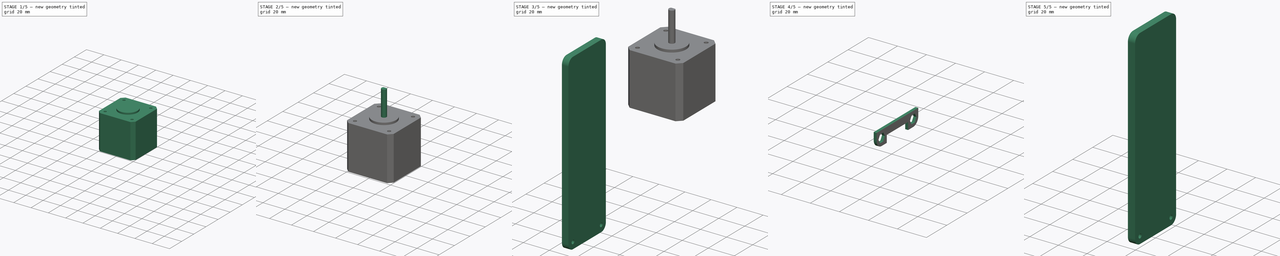
[diagram: build sequence overview — one tinted view per stage of 5, left to right]
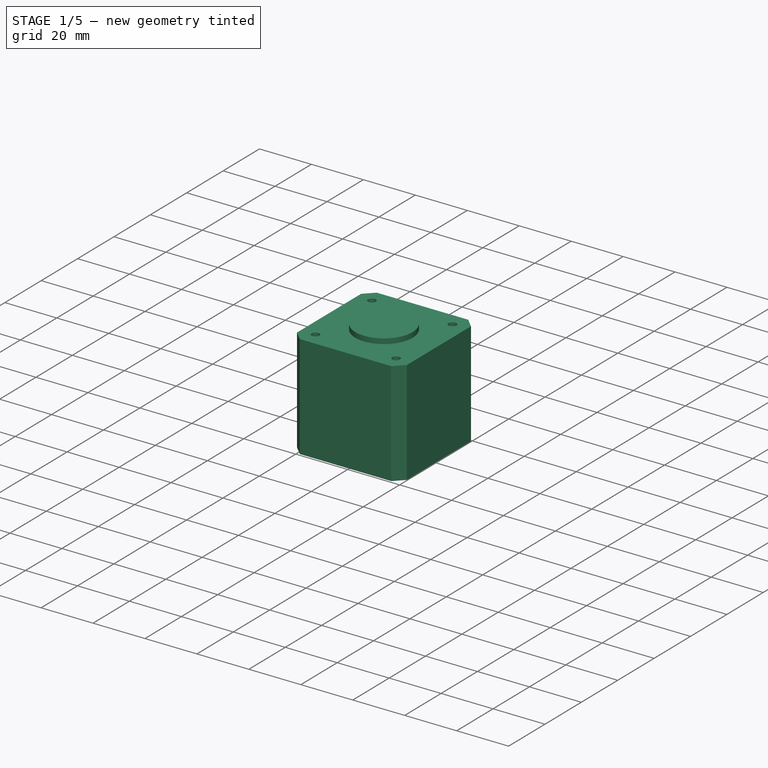
[diagram: stage 1 of 5 — iso view after this stage's code; geometry added in this stage tinted green]
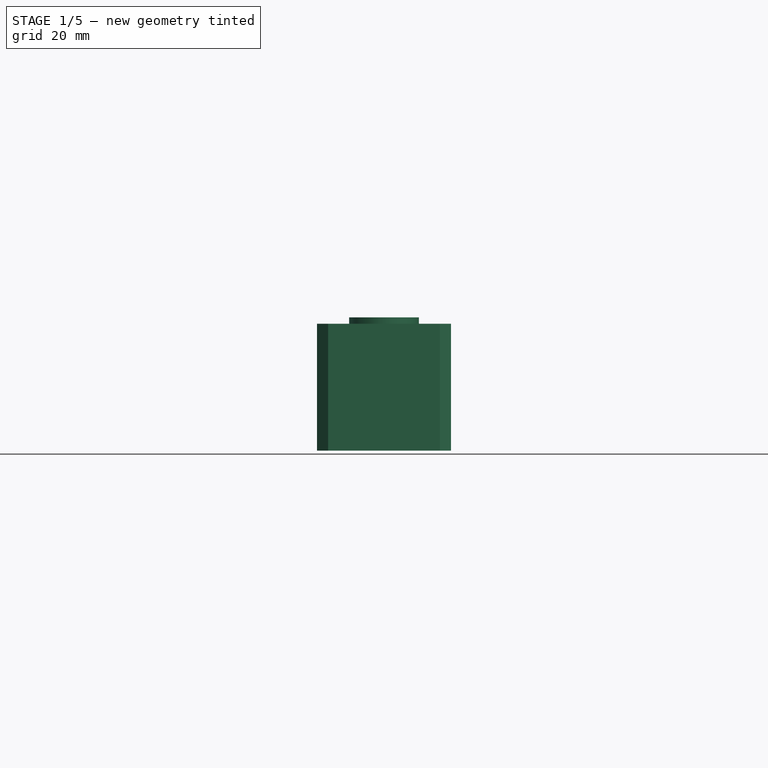
[diagram: stage 1 of 5 — front view after this stage's code; geometry added in this stage tinted green]
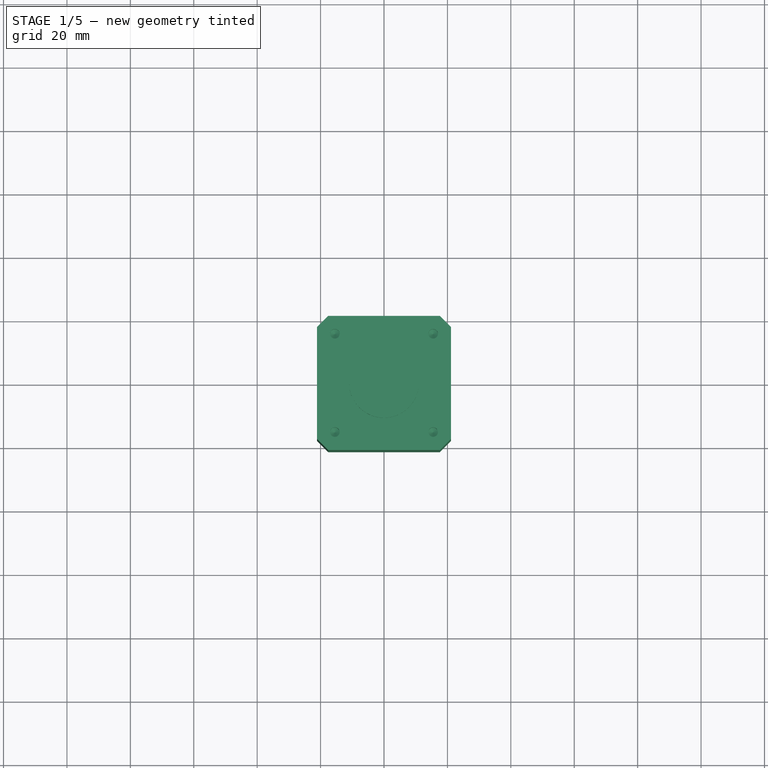
[diagram: stage 1 of 5 — top view after this stage's code; geometry added in this stage tinted green]
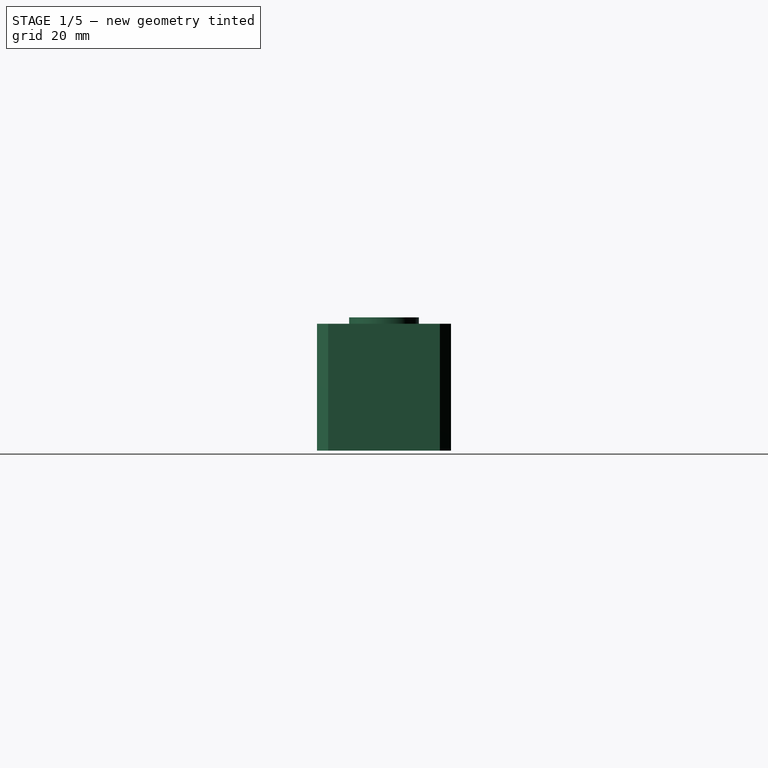
[diagram: stage 1 of 5 — right view after this stage's code; geometry added in this stage tinted green]
FCSTD DOCUMENT  (FreeCAD 0.21R33668 +26 (Git))
Label: elevation-rotation-table
License: All rights reserved
LicenseURL: http://en.wikipedia.org/wiki/All_rights_reserved
objects: Sketcher::SketchObject×19, PartDesign::Pad×9, PartDesign::ShapeBinder×7, PartDesign::Body×5, PartDesign::Pocket×3, PartDesign::Hole×2, PartDesign::AdditiveLoft×2, Part::FeaturePython×1, Part::Fuse×1
note: 65 computed .brp shape members not serialized (recipe doc carries the construction recipe); baked Part::Feature solids carry a one-line shape summary decoded from their .brp

FEATURE [Sketcher::SketchObject] Sketch005
  FullyConstrained = true
  MapMode = 5
  Support = -> [XY_Plane001]
  sketch-geometry (18):
    g0: LineSegment StartX=-17.6145 StartY=21.15 StartZ=0 EndX=17.6145 EndY=21.15 EndZ=0
    g1: LineSegment StartX=17.6145 StartY=21.15 StartZ=0 EndX=21.15 EndY=17.6145 EndZ=0
    g2: LineSegment StartX=21.15 StartY=17.6145 StartZ=0 EndX=21.15 EndY=-17.6145 EndZ=0
    g3: LineSegment StartX=21.15 StartY=-17.6145 StartZ=0 EndX=17.6145 EndY=-21.15 EndZ=0
    g4: LineSegment StartX=17.6145 StartY=-21.15 StartZ=0 EndX=-17.6145 EndY=-21.15 EndZ=0
    g5: LineSegment StartX=-17.6145 StartY=-21.15 StartZ=0 EndX=-21.15 EndY=-17.6145 EndZ=0
    g6: LineSegment StartX=-21.15 StartY=-17.6145 StartZ=0 EndX=-21.15 EndY=17.6145 EndZ=0
    g7: LineSegment StartX=-21.15 StartY=17.6145 StartZ=0 EndX=-17.6145 EndY=21.15 EndZ=0
    g8: LineSegment StartX=-21.15 StartY=17.6145 StartZ=0 EndX=21.15 EndY=17.6145 EndZ=0
    g9: LineSegment StartX=-17.6145 StartY=-21.15 StartZ=0 EndX=-17.6145 EndY=21.15 EndZ=0
    g10: LineSegment StartX=17.6145 StartY=21.15 StartZ=0 EndX=17.6145 EndY=-21.15 EndZ=0
    g11: LineSegment StartX=21.15 StartY=-17.6145 StartZ=0 EndX=-21.15 EndY=-17.6145 EndZ=0
    g12: GeomPoint X=-17.6145 Y=17.6145 Z=0
    g13: GeomPoint X=17.6145 Y=17.6145 Z=0
    g14: GeomPoint X=17.6145 Y=-17.6145 Z=0
    g15: GeomPoint X=-17.6145 Y=-17.6145 Z=0
    g16: LineSegment StartX=-17.6145 StartY=17.6145 StartZ=0 EndX=17.6145 EndY=-17.6145 EndZ=0
    g17: LineSegment StartX=17.6145 StartY=17.6145 StartZ=0 EndX=-17.6145 EndY=-17.6145 EndZ=0
  constraints (44):
    c: Horizontal(g0)
    c: Coincident(g1,g0)
    c: Coincident(g2,g1)
    c: Vertical(g2)
    c: Coincident(g3,g2)
    c: Coincident(g4,g3)
    c: Horizontal(g4)
    c: Coincident(g5,g4)
    c: Coincident(g6,g5)
    c: Vertical(g6)
    c: Coincident(g7,g6)
    c: Coincident(g7,g0)
    c: Coincident(g8,g6)
    c: Coincident(g8,g1)
    c: Horizontal(g8)
    c: Coincident(g9,g4)
    c: Coincident(g9,g0)
    c: Vertical(g9)
    c: Distance(g8) = 42.3
    c: Distance(g9) = 42.3
    c: Equal(g3,g5)
    c: Equal(g1,g3)
    c: Equal(g7,g1)
    c: Coincident(g10,g0)
    c: Coincident(g10,g3)
    c: Vertical(g10)
    c: Coincident(g11,g2)
    c: Coincident(g11,g5)
    c: PointOnObject(g12,g8)
    c: PointOnObject(g13,g8)
    c: PointOnObject(g14,g11)
    c: PointOnObject(g15,g9)
    c: PointOnObject(g12,g9)
    c: PointOnObject(g14,g10)
    c: PointOnObject(g15,g11)
    c: Coincident(g16,g12)
    c: Coincident(g16,g14)
    c: Coincident(g17,g13)
    c: Coincident(g17,g15)
    c: PointOnObject(g-1,g16)
    c: PointOnObject(g13,g10)
    c: PointOnObject(g-1,g17)
    c: Equal(g2,g4)
    c: Distance(g1) = 5
FEATURE [PartDesign::Pad] Pad002
  Direction = (0,0,1)
  Length = 40
  Length2 = 10
  Profile = -> Sketch005
  ReferenceAxis = -> Sketch005 [N_Axis]
  Type = 0
FEATURE [Sketcher::SketchObject] Sketch006
  FullyConstrained = true
  MapMode = 5
  Placement = pos=(0,0,40) rot=(0,0,1;0rad)
  Support = -> [Pad002]
  sketch-geometry (10):
    g0: Circle CenterX=15.5 CenterY=15.5 CenterZ=0 NormalX=0 NormalY=0 NormalZ=1 AngleXU=0 Radius=1.5
    g1: Circle CenterX=-15.5 CenterY=15.5 CenterZ=0 NormalX=0 NormalY=0 NormalZ=1 AngleXU=0 Radius=1.5
    g2: Circle CenterX=-15.5 CenterY=-15.5 CenterZ=0 NormalX=0 NormalY=0 NormalZ=1 AngleXU=0 Radius=1.5
    g3: Circle CenterX=15.5 CenterY=-15.5 CenterZ=0 NormalX=0 NormalY=0 NormalZ=1 AngleXU=0 Radius=1.5
    g4: LineSegment StartX=-15.5 StartY=15.5 StartZ=0 EndX=15.5 EndY=15.5 EndZ=0
    g5: LineSegment StartX=15.5 StartY=15.5 StartZ=0 EndX=15.5 EndY=-15.5 EndZ=0
    g6: LineSegment StartX=15.5 StartY=-15.5 StartZ=0 EndX=-15.5 EndY=-15.5 EndZ=0
    g7: LineSegment StartX=-15.5 StartY=-15.5 StartZ=0 EndX=-15.5 EndY=15.5 EndZ=0
    g8: LineSegment StartX=-15.5 StartY=15.5 StartZ=0 EndX=15.5 EndY=-15.5 EndZ=0
    g9: LineSegment StartX=15.5 StartY=15.5 StartZ=0 EndX=-15.5 EndY=-15.5 EndZ=0
  constraints (24):
    c: Diameter(g0) = 3
    c: Equal(g1,g0)
    c: Equal(g1,g2)
    c: Equal(g0,g3)
    c: Coincident(g4,g5)
    c: Coincident(g5,g6)
    c: Coincident(g6,g7)
    c: Coincident(g7,g4)
    c: Horizontal(g4)
    c: Horizontal(g6)
    c: Vertical(g5)
    c: Vertical(g7)
    c: Coincident(g4,g1)
    c: Coincident(g5,g3)
    c: Coincident(g4,g0)
    c: Coincident(g6,g2)
    c: Distance(g4) = 31
    c: Coincident(g8,g1)
    c: Coincident(g8,g3)
    c: Coincident(g9,g0)
    c: Coincident(g9,g2)
    c: PointOnObject(g-1,g8)
    c: PointOnObject(g-1,g9)
    c: Equal(g4,g5)
FEATURE [PartDesign::Hole] Hole
  BaseFeature = -> Pad002
  CustomThreadClearance = 0
  Depth = 4.5
  DepthType = 0
  Diameter = 3
  DrillForDepth = false
  DrillPoint = 1
  DrillPointAngle = 118
  HoleCutCountersinkAngle = 90
  HoleCutCustomValues = false
  HoleCutDepth = 0
  HoleCutDiameter = 6.1
  HoleCutType = 0
  ModelThread = false
  Profile = -> Sketch006
  Tapered = false
  TaperedAngle = 90
  ThreadClass = 0
  ThreadDepth = 4.5
  ThreadDepthType = 0
  ThreadDirection = 0
  ThreadFit = 0
  ThreadSize = 0
  ThreadType = 0
  Threaded = false
  UseCustomThreadClearance = false
FEATURE [Sketcher::SketchObject] Sketch002
  ExternalGeometry = -> [Hole]
  FullyConstrained = true
  MapMode = 5
  Support = -> [XY_Plane001]
  sketch-geometry (4):
    g0: Circle CenterX=-15.5 CenterY=15.5 CenterZ=0 NormalX=0 NormalY=0 NormalZ=1 AngleXU=0 Radius=1.5
    g1: Circle CenterX=-15.5 CenterY=-15.5 CenterZ=0 NormalX=0 NormalY=0 NormalZ=1 AngleXU=0 Radius=1.5
    g2: Circle CenterX=15.5 CenterY=-15.5 CenterZ=0 NormalX=0 NormalY=0 NormalZ=1 AngleXU=0 Radius=1.5
    g3: Circle CenterX=15.5 CenterY=15.5 CenterZ=0 NormalX=0 NormalY=0 NormalZ=1 AngleXU=0 Radius=1.5
  constraints (8):
    c: Coincident(g0,g-3)
    c: Coincident(g1,g-6)
    c: Coincident(g2,g-5)
    c: Coincident(g3,g-4)
    c: Equal(g-3,g1)
    c: Equal(g2,g-3)
    c: Equal(g-4,g0)
    c: Equal(g0,g3)
FEATURE [PartDesign::Hole] Hole001
  BaseFeature = -> Hole
  CustomThreadClearance = 0
  Depth = 4.5
  DepthType = 0
  Diameter = 3
  DrillForDepth = false
  DrillPoint = 1
  DrillPointAngle = 118
  HoleCutCountersinkAngle = 90
  HoleCutCustomValues = false
  HoleCutDepth = 0
  HoleCutDiameter = 6.1
  HoleCutType = 0
  ModelThread = false
  Profile = -> Sketch002
  Reversed = true
  Tapered = false
  TaperedAngle = 90
  ThreadClass = 0
  ThreadDepth = 4.5
  ThreadDepthType = 0
  ThreadDirection = 0
  ThreadFit = 0
  ThreadSize = 0
  ThreadType = 0
  Threaded = false
  UseCustomThreadClearance = false
FEATURE [Sketcher::SketchObject] Sketch007
  FullyConstrained = true
  MapMode = 5
  Placement = pos=(0,0,40) rot=(0,0,1;0rad)
  Support = -> [Hole001]
  sketch-geometry (1):
    g0: Circle CenterX=0 CenterY=0 CenterZ=0 NormalX=0 NormalY=0 NormalZ=1 AngleXU=0 Radius=11
  constraints (2):
    c: Coincident(g0,g-1)
    c: Diameter(g0) = 22
FEATURE [PartDesign::Pad] Pad003
  BaseFeature = -> Hole001
  Direction = (0,0,1)
  Length = 2
  Length2 = 10
  Profile = -> Sketch007
  ReferenceAxis = -> Sketch007 [N_Axis]
  Type = 0
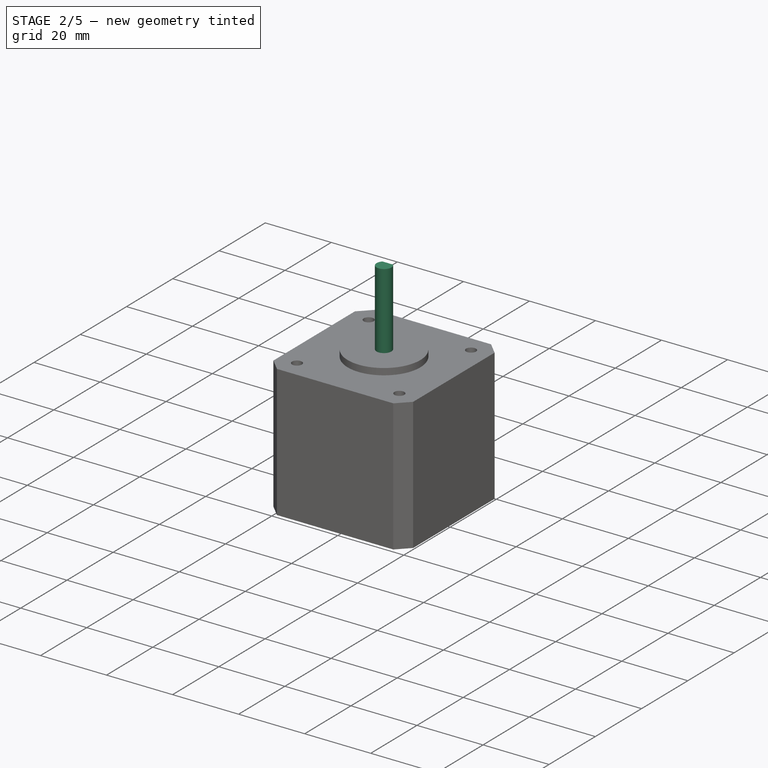
[diagram: stage 2 of 5 — iso view after this stage's code; geometry added in this stage tinted green]
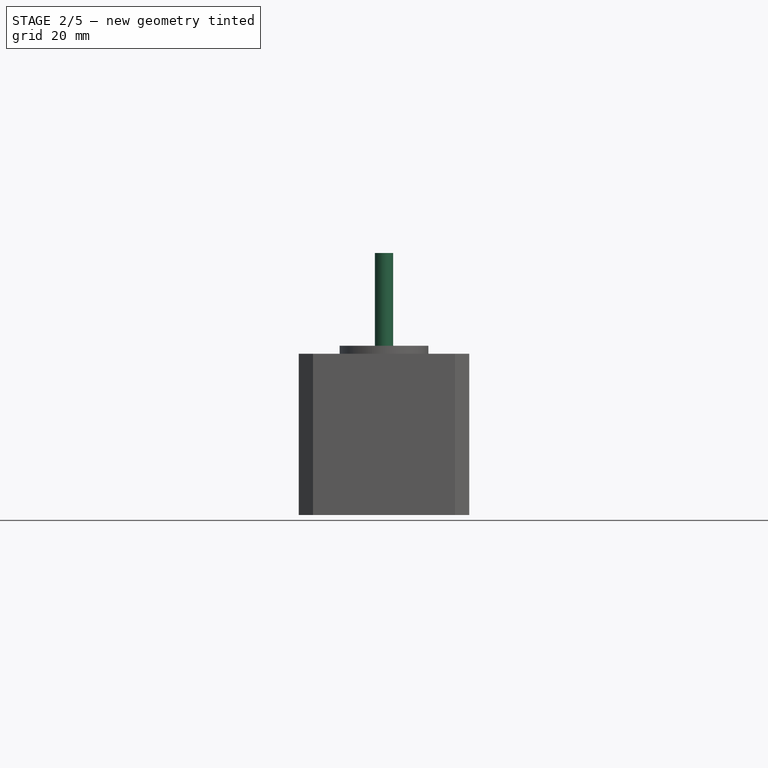
[diagram: stage 2 of 5 — front view after this stage's code; geometry added in this stage tinted green]
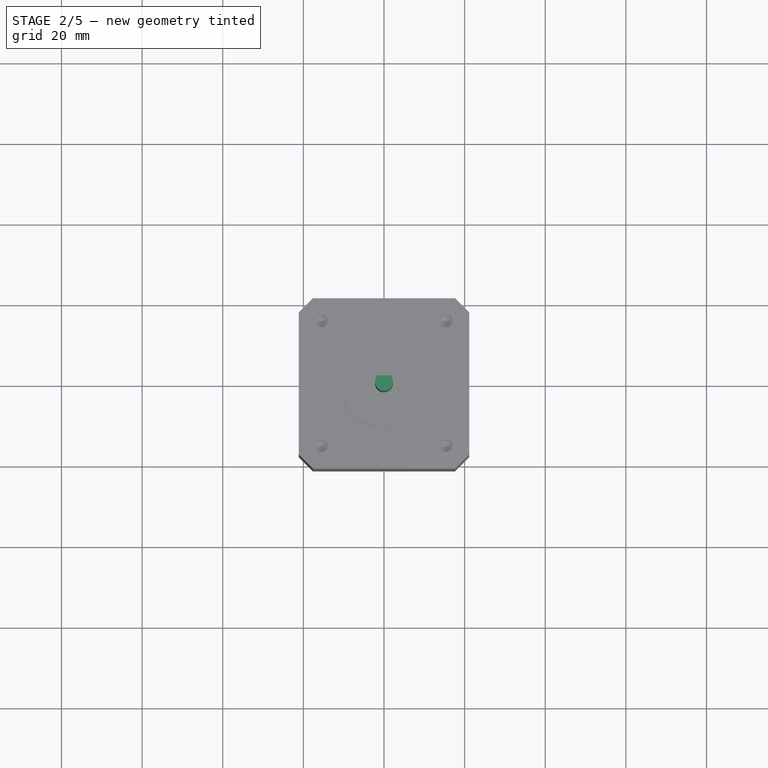
[diagram: stage 2 of 5 — top view after this stage's code; geometry added in this stage tinted green]
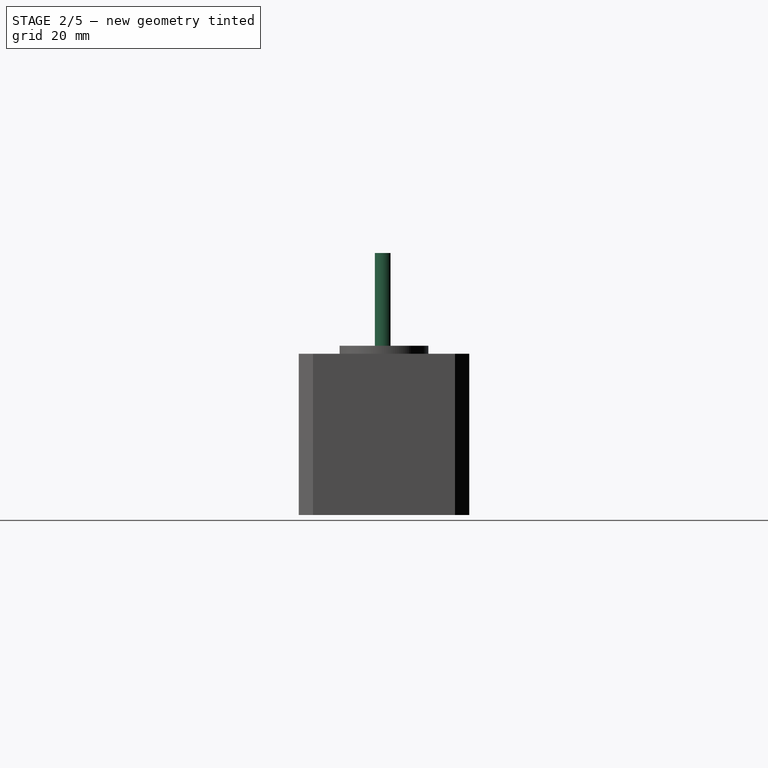
[diagram: stage 2 of 5 — right view after this stage's code; geometry added in this stage tinted green]
FEATURE [Sketcher::SketchObject] Sketch008
  FullyConstrained = true
  MapMode = 5
  Placement = pos=(0,0,42) rot=(0,0,1;0rad)
  Support = -> [Pad003]
  sketch-geometry (3):
    g0: ArcOfCircle CenterX=0 CenterY=0 CenterZ=0 NormalX=0 NormalY=0 NormalZ=1 AngleXU=0 Radius=2.25 StartAngle=2.35052 EndAngle=7.07426
    g1: LineSegment StartX=-1.58193 StartY=1.6 StartZ=0 EndX=1.58193 EndY=1.6 EndZ=0
    g2: LineSegment StartX=1.58193 StartY=1.6 StartZ=0 EndX=1.58193 EndY=0 EndZ=0
  constraints (9):
    c: Coincident(g0,g-1)
    c: Coincident(g1,g0)
    c: Coincident(g1,g0)
    c: Parallel(g1,g-1)
    c: Diameter(g0) = 4.5
    c: Coincident(g2,g0)
    c: PointOnObject(g2,g-1)
    c: Vertical(g2)
    c: Distance(g2) = 1.6
FEATURE [PartDesign::Pad] Pad004
  BaseFeature = -> Pad003
  Direction = (0,0,1)
  Length = 23
  Length2 = 10
  Profile = -> Sketch008
  ReferenceAxis = -> Sketch008 [N_Axis]
  Type = 0
FEATURE [PartDesign::Body] Body001  label="Motor NEMA17"
  Group = -> [Sketch005,Pad002,Sketch006,Hole,Sketch002,Hole001,Sketch007,Pad003,Sketch008,Pad004]
  Origin = -> Origin001
  Placement = pos=(0,0,0) rot=(0,-1,0;1.5708rad)
  Tip = -> Pad004
FEATURE [Sketcher::SketchObject] Sketch
  FullyConstrained = true
  MapMode = 5
  Support = -> [XY_Plane]
  sketch-geometry (10):
    g0: Circle CenterX=-15.5 CenterY=15.5 CenterZ=0 NormalX=0 NormalY=0 NormalZ=1 AngleXU=0 Radius=1.5
    g1: Circle CenterX=15.5 CenterY=15.5 CenterZ=0 NormalX=0 NormalY=0 NormalZ=1 AngleXU=0 Radius=1.5
    g2: Circle CenterX=15.5 CenterY=-15.5 CenterZ=0 NormalX=0 NormalY=0 NormalZ=1 AngleXU=0 Radius=1.5
    g3: Circle CenterX=-15.5 CenterY=-15.5 CenterZ=0 NormalX=0 NormalY=0 NormalZ=1 AngleXU=0 Radius=1.5
    g4: LineSegment StartX=-15.5 StartY=15.5 StartZ=0 EndX=15.5 EndY=15.5 EndZ=0
    g5: LineSegment StartX=15.5 StartY=15.5 StartZ=0 EndX=15.5 EndY=-15.5 EndZ=0
    g6: LineSegment StartX=15.5 StartY=-15.5 StartZ=0 EndX=-15.5 EndY=-15.5 EndZ=0
    g7: LineSegment StartX=-15.5 StartY=-15.5 StartZ=0 EndX=-15.5 EndY=15.5 EndZ=0
    g8: LineSegment StartX=-15.5 StartY=15.5 StartZ=0 EndX=15.5 EndY=-15.5 EndZ=0
    g9: LineSegment StartX=15.5 StartY=15.5 StartZ=0 EndX=-15.5 EndY=-15.5 EndZ=0
  constraints (24):
    c: Diameter(g1) = 3
    c: Diameter(g2) = 3
    c: Diameter(g3) = 3
    c: Diameter(g0) = 3
    c: Coincident(g4,g5)
    c: Coincident(g5,g6)
    c: Coincident(g6,g7)
    c: Coincident(g7,g4)
    c: Horizontal(g4)
    c: Horizontal(g6)
    c: Vertical(g5)
    c: Vertical(g7)
    c: Coincident(g4,g0)
    c: Coincident(g5,g2)
    c: Coincident(g1,g4)
    c: Coincident(g3,g6)
    c: Equal(g4,g5)
    c: Coincident(g8,g0)
    c: Coincident(g8,g2)
    c: Coincident(g9,g1)
    c: Coincident(g9,g3)
    c: PointOnObject(g-1,g8)
    c: PointOnObject(g-1,g9)
    c: Distance(g5) = 31
FEATURE [Sketcher::SketchObject] Sketch001
  ExternalGeometry = -> [Sketch]
  FullyConstrained = true
  MapMode = 5
  Support = -> [XY_Plane]
  sketch-geometry (18):
    g0: ArcOfCircle CenterX=-15.5 CenterY=15.5 CenterZ=0 NormalX=0 NormalY=0 NormalZ=1 AngleXU=0 Radius=5 StartAngle=1.5708 EndAngle=3.14159
    g1: ArcOfCircle CenterX=15.5 CenterY=15.5 CenterZ=0 NormalX=0 NormalY=0 NormalZ=1 AngleXU=0 Radius=5 StartAngle=-8e-15 EndAngle=1.5708
    g2: LineSegment StartX=-15.5 StartY=20.5 StartZ=0 EndX=15.5 EndY=20.5 EndZ=0
    g3: ArcOfCircle CenterX=-10.9428 CenterY=10.9428 CenterZ=0 NormalX=0 NormalY=0 NormalZ=1 AngleXU=0 Radius=2.5 StartAngle=1.5708 EndAngle=3.14159
    g4: ArcOfCircle CenterX=10.9428 CenterY=10.9428 CenterZ=0 NormalX=0 NormalY=0 NormalZ=1 AngleXU=0 Radius=2.5 StartAngle=0 EndAngle=1.5708
    g5: ArcOfCircle CenterX=10.9428 CenterY=-10.9428 CenterZ=0 NormalX=0 NormalY=0 NormalZ=1 AngleXU=0 Radius=2.5 StartAngle=4.71239 EndAngle=6.28319
    g6: ArcOfCircle CenterX=-10.9428 CenterY=-10.9428 CenterZ=0 NormalX=0 NormalY=0 NormalZ=1 AngleXU=0 Radius=2.5 StartAngle=3.14159 EndAngle=4.71239
    g7: LineSegment StartX=-10.9428 StartY=13.4428 StartZ=0 EndX=10.9428 EndY=13.4428 EndZ=0
    g8: LineSegment StartX=13.4428 StartY=10.9428 StartZ=0 EndX=13.4428 EndY=-10.9428 EndZ=0
    g9: LineSegment StartX=10.9428 StartY=-13.4428 StartZ=0 EndX=-10.9428 EndY=-13.4428 EndZ=0
    g10: LineSegment StartX=-13.4428 StartY=-10.9428 StartZ=0 EndX=-13.4428 EndY=10.9428 EndZ=0
    g11: GeomPoint X=10.9428 Y=13.4428 Z=0
    g12: ArcOfCircle CenterX=-15.5 CenterY=-15.5 CenterZ=0 NormalX=0 NormalY=0 NormalZ=1 AngleXU=0 Radius=5 StartAngle=3.14159 EndAngle=4.71239
    g13: ArcOfCircle CenterX=15.5 CenterY=-15.5 CenterZ=0 NormalX=0 NormalY=0 NormalZ=1 AngleXU=0 Radius=5 StartAngle=4.71239 EndAngle=6.28319
    g14: LineSegment StartX=-20.5 StartY=15.5 StartZ=0 EndX=-20.5 EndY=-15.5 EndZ=0
    g15: LineSegment StartX=20.5 StartY=-15.5 StartZ=0 EndX=20.5 EndY=15.5 EndZ=0
    g16: LineSegment StartX=0 StartY=0 StartZ=0 EndX=15.5 EndY=15.5 EndZ=0
    g17: LineSegment StartX=-15.5 StartY=-20.5 StartZ=0 EndX=15.5 EndY=-20.5 EndZ=0
  constraints (39):
    c: Coincident(g0,g-3)
    c: Coincident(g1,g-4)
    c: Horizontal(g2)
    c: Radius(g1) = 5
    c: Coincident(g7,g4)
    c: Horizontal(g7)
    c: Vertical(g8)
    c: Horizontal(g9)
    c: Vertical(g10)
    c: Radius(g4) = 2.5
    c: PointOnObject(g11,g4)
    c: Distance(g1,g11) = 5
    c: Vertical(g14)
    c: Symmetric(g3,g6,g-1)
    c: Symmetric(g5,g4,g-1)
    c: Symmetric(g13,g1,g-1)
    c: Symmetric(g6,g5,g-2)
    c: Coincident(g12,g-6)
    c: Tangent(g15,g13) = -1.5708
    c: Tangent(g14,g12) = -1.5708
    c: Tangent(g15,g1) = -1.5708
    c: Tangent(g2,g1) = 1.5708
    c: Tangent(g2,g0) = 1.5708
    c: Tangent(g14,g0) = -1.5708
    c: Tangent(g8,g5) = 1.5708
    c: Tangent(g9,g5) = 1.5708
    c: Tangent(g9,g6) = 1.5708
    c: Tangent(g10,g6) = 1.5708
    c: Tangent(g10,g3) = 1.5708
    c: Tangent(g7,g3) = 1.5708
    c: Tangent(g7,g4,g11) = 1.5708
    c: Tangent(g8,g4) = 1.5708
    c: Symmetric(g4,g3,g-2)
    c: Coincident(g16,g-1)
    c: Coincident(g16,g1)
    c: PointOnObject(g4,g16)
    c: Horizontal(g17)
    c: Tangent(g17,g13) = -1.5708
    c: Tangent(g17,g12) = -1.5708
FEATURE [PartDesign::Pad] Pad
  Direction = (0,0,1)
  Length = 3
  Length2 = 10
  Profile = -> Sketch001
  ReferenceAxis = -> Sketch001 [N_Axis]
  Type = 0
FEATURE [PartDesign::Pocket] Pocket  label="Motor-Attachment"
  BaseFeature = -> Pad
  Direction = (0,0,-1)
  Length = 3
  Length2 = 5
  Profile = -> Sketch
  ReferenceAxis = -> Sketch [N_Axis]
  Reversed = true
  Type = 0
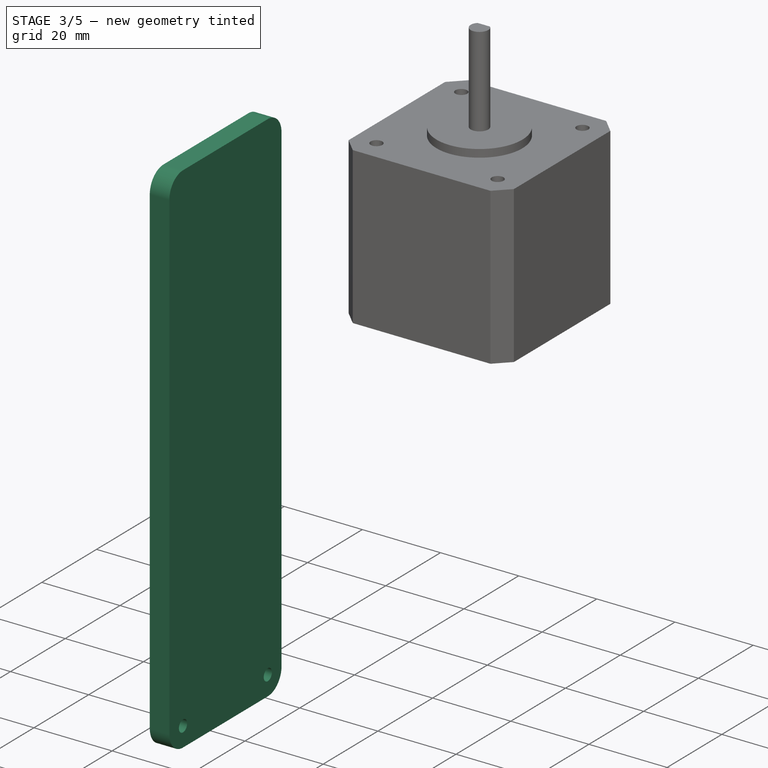
[diagram: stage 3 of 5 — iso view after this stage's code; geometry added in this stage tinted green]
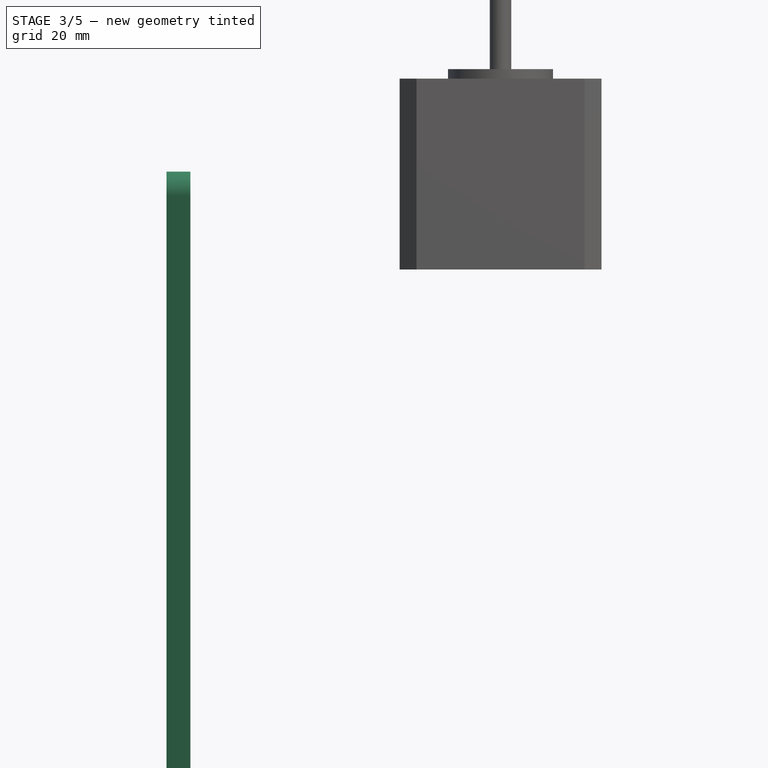
[diagram: stage 3 of 5 — front view after this stage's code; geometry added in this stage tinted green]
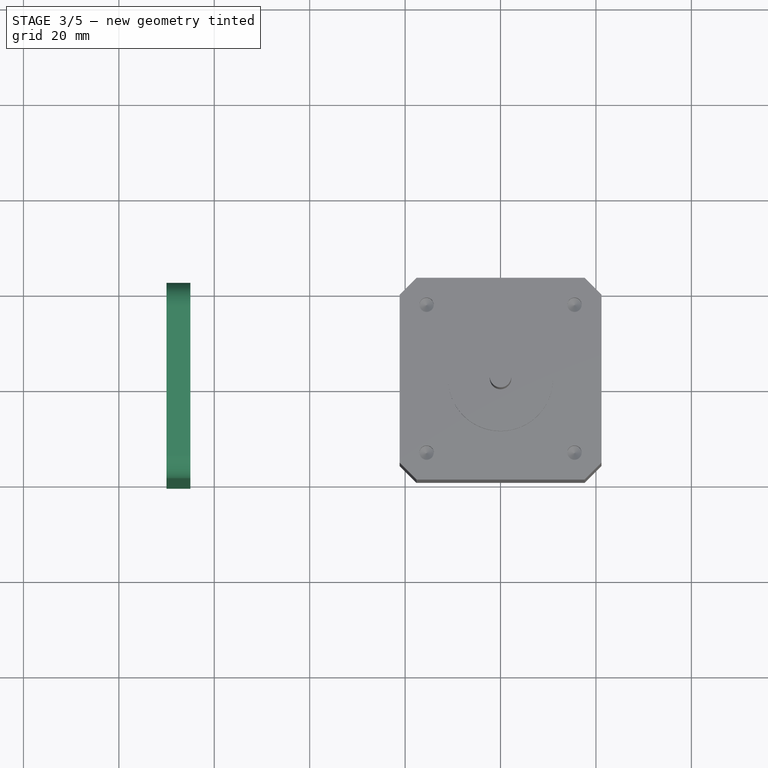
[diagram: stage 3 of 5 — top view after this stage's code; geometry added in this stage tinted green]
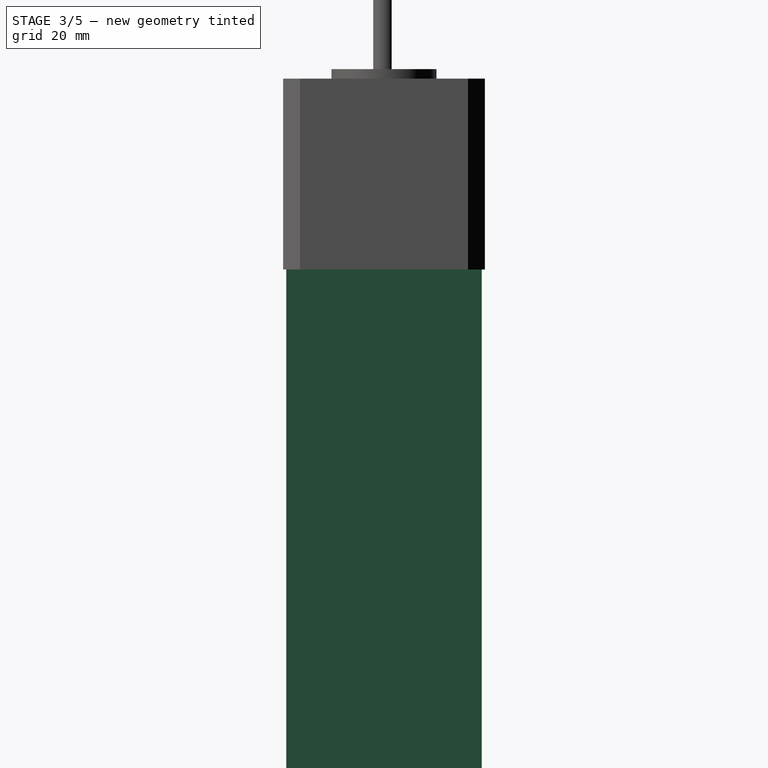
[diagram: stage 3 of 5 — right view after this stage's code; geometry added in this stage tinted green]
FEATURE [PartDesign::ShapeBinder] ShapeBinder
  Support = -> [Pocket]
  TraceSupport = false
FEATURE [Sketcher::SketchObject] Sketch014
  ExternalGeometry = -> [ShapeBinder]
  FullyConstrained = true
  MapMode = 5
  Placement = pos=(0,0,3) rot=(0,0,1;0rad)
  Support = -> [ShapeBinder]
  sketch-geometry (4):
    g0: LineSegment StartX=-10.9428 StartY=13.4428 StartZ=0 EndX=10.9428 EndY=13.4428 EndZ=0
    g1: LineSegment StartX=10.9428 StartY=13.4428 StartZ=0 EndX=10.9428 EndY=20.5 EndZ=0
    g2: LineSegment StartX=10.9428 StartY=20.5 StartZ=0 EndX=-10.9428 EndY=20.5 EndZ=0
    g3: LineSegment StartX=-10.9428 StartY=20.5 StartZ=0 EndX=-10.9428 EndY=13.4428 EndZ=0
  constraints (10):
    c: Coincident(g0,g1)
    c: Coincident(g1,g2)
    c: Coincident(g2,g3)
    c: Coincident(g3,g0)
    c: Horizontal(g2)
    c: Vertical(g1)
    c: Vertical(g3)
    c: Coincident(g0,g-3)
    c: PointOnObject(g1,g-4)
    c: Coincident(g0,g-3)
FEATURE [Sketcher::SketchObject] Sketch015
  AttachmentOffset = pos=(0,0,22) rot=(0,0,1;0rad)
  ExternalGeometry = -> [ShapeBinder]
  FullyConstrained = true
  MapMode = 5
  Placement = pos=(0,0,25) rot=(0,0,1;0rad)
  Support = -> [ShapeBinder]
  sketch-geometry (4):
    g0: ArcOfCircle CenterX=0 CenterY=0 CenterZ=0 NormalX=0 NormalY=0 NormalZ=1 AngleXU=0 Radius=20.5 StartAngle=1.00771 EndAngle=2.13388
    g1: LineSegment StartX=-10.9428 StartY=17.3351 StartZ=0 EndX=-10.9428 EndY=13.4428 EndZ=0
    g2: LineSegment StartX=-10.9428 StartY=13.4428 StartZ=0 EndX=10.9428 EndY=13.4428 EndZ=0
    g3: LineSegment StartX=10.9428 StartY=13.4428 StartZ=0 EndX=10.9428 EndY=17.3351 EndZ=0
  constraints (10):
    c: Coincident(g1,g0)
    c: Vertical(g1)
    c: Coincident(g2,g1)
    c: Coincident(g3,g2)
    c: Vertical(g3)
    c: Coincident(g2,g-5)
    c: Coincident(g1,g-4)
    c: Coincident(g0,g3)
    c: Tangent(g0,g-3)
    c: Coincident(g0,g-1)
FEATURE [PartDesign::AdditiveLoft] AdditiveLoft
  Closed = false
  Profile = -> Sketch014
  Ruled = false
  Sections = -> [Sketch015]
FEATURE [Sketcher::SketchObject] Sketch016
  ExternalGeometry = -> [AdditiveLoft]
  FullyConstrained = true
  MapMode = 5
  Placement = pos=(0,0,25) rot=(0,0,1;0rad)
  Support = -> [AdditiveLoft]
  sketch-geometry (3):
    g0: Circle CenterX=0 CenterY=16.9714 CenterZ=0 NormalX=0 NormalY=0 NormalZ=1 AngleXU=0 Radius=2
    g1: LineSegment StartX=0 StartY=20.5 StartZ=0 EndX=0 EndY=16.9714 EndZ=0
    g2: LineSegment StartX=0 StartY=16.9714 StartZ=0 EndX=0 EndY=13.4428 EndZ=0
  constraints (9):
    c: PointOnObject(g0,g-2)
    c: PointOnObject(g1,g-3)
    c: Coincident(g1,g0)
    c: Vertical(g1)
    c: Coincident(g2,g0)
    c: PointOnObject(g2,g-4)
    c: Vertical(g2)
    c: Equal(g2,g1)
    c: Diameter(g0) = 4
FEATURE [PartDesign::Body] Body003
  Group = -> [ShapeBinder,Sketch014,Sketch015,AdditiveLoft,Sketch016]
  Origin = -> Origin003
  Tip = -> AdditiveLoft
FEATURE [Part::FeaturePython] Array  label="Table-Attachment"  # Draft array (typed FeaturePython)
  AlwaysSyncPlacement = false
  Angle = 360
  ArrayType = 1
  Axis = (0,0,1)
  Base = -> Body003
  Center = (0,0,0)
  Count = 4
  ExpandArray = false
  Fuse = true
  IntervalAxis = (0,0,0)
  IntervalX = (50,0,0)
  IntervalY = (0,50,0)
  IntervalZ = (0,0,50)
  NumberCircles = 3
  NumberPolar = 4
  NumberX = 2
  NumberY = 2
  NumberZ = 1
  PlacementList = 4 placements: [(0,0,0),(0,0,0),(0,0,0),(0,0,0)]
  RadialDistance = 50
  ScaleList = (4) [(1,1,1),(1,1,1),(1,1,1),(1,1,1)]
  Symmetry = 1
  TangentialDistance = 25
FEATURE [Part::Fuse] Fusion  label="Motor-Table-connector"
  Base = -> Array
  Placement = pos=(-40,0,0) rot=(0.57735,0.57735,-0.57735;4.18879rad)
  Tool = -> Pocket
FEATURE [PartDesign::ShapeBinder] ShapeBinder001
  Placement = pos=(-40,0,0) rot=(-0.57735,0.57735,0.57735;4.18879rad)
  Support = -> [Fusion]
  TraceSupport = true
FEATURE [PartDesign::ShapeBinder] ShapeBinder002
  Placement = pos=(-40,0,0) rot=(0.57735,0.57735,-0.57735;4.18879rad)
  Support = -> [Fusion]
  TraceSupport = true
FEATURE [Sketcher::SketchObject] Sketch017
  ExternalGeometry = -> [ShapeBinder002]
  FullyConstrained = true
  MapMode = 5
  Placement = pos=(-65,5.6e-15,5.6e-15) rot=(-0.57735,0.57735,0.57735;4.18879rad)
  Support = -> [ShapeBinder001]
  sketch-geometry (15):
    g0: ArcOfCircle CenterX=-15.5 CenterY=15.5 CenterZ=0 NormalX=0 NormalY=0 NormalZ=1 AngleXU=0 Radius=5 StartAngle=1.5708 EndAngle=3.14159
    g1: ArcOfCircle CenterX=15.5 CenterY=15.5 CenterZ=0 NormalX=0 NormalY=0 NormalZ=1 AngleXU=0 Radius=5 StartAngle=0 EndAngle=1.5708
    g2: LineSegment StartX=-15.5 StartY=20.5 StartZ=0 EndX=15.5 EndY=20.5 EndZ=0
    g3: LineSegment StartX=-20.5 StartY=15.5 StartZ=0 EndX=-20.5 EndY=-108 EndZ=0
    g4: LineSegment StartX=20.5 StartY=15.5 StartZ=0 EndX=20.5 EndY=-108 EndZ=0
    g5: LineSegment StartX=-15.5 StartY=-113 StartZ=0 EndX=15.5 EndY=-113 EndZ=0
    g6: ArcOfCircle CenterX=-15.5 CenterY=-108 CenterZ=0 NormalX=0 NormalY=0 NormalZ=1 AngleXU=0 Radius=5 StartAngle=3.14159 EndAngle=4.71239
    g7: ArcOfCircle CenterX=15.5 CenterY=-108 CenterZ=0 NormalX=0 NormalY=0 NormalZ=1 AngleXU=0 Radius=5 StartAngle=4.71239 EndAngle=6.28319
    g8: LineSegment StartX=-15.5 StartY=-108 StartZ=0 EndX=-15.5 EndY=-113 EndZ=0
    g9: LineSegment StartX=15.5 StartY=-108 StartZ=0 EndX=15.5 EndY=-113 EndZ=0
    g10: Circle CenterX=15.5 CenterY=-108 CenterZ=0 NormalX=0 NormalY=0 NormalZ=1 AngleXU=0 Radius=1.5
    g11: Circle CenterX=-15.5 CenterY=-108 CenterZ=0 NormalX=0 NormalY=0 NormalZ=1 AngleXU=0 Radius=1.5
    g12: LineSegment StartX=20.5 StartY=-100 StartZ=0 EndX=-20.5 EndY=-100 EndZ=0
    g13: LineSegment StartX=15.5 StartY=-108 StartZ=0 EndX=15.5 EndY=-103 EndZ=0
    g14: LineSegment StartX=15.5 StartY=-103 StartZ=0 EndX=15.5 EndY=-100 EndZ=0
  constraints (41):
    c: Coincident(g0,g-3)
    c: Coincident(g0,g-4)
    c: Angle(g0) = 1.5708
    c: Coincident(g1,g-5)
    c: Coincident(g1,g-6)
    c: Angle(g1) = 1.5708
    c: Coincident(g2,g0)
    c: Coincident(g2,g1)
    c: Coincident(g3,g0)
    c: Vertical(g3)
    c: Coincident(g4,g1)
    c: Vertical(g4)
    c: Symmetric(g5,g5,g-2)
    c: Equal(g5,g2)
    c: Coincident(g6,g3)
    c: Coincident(g6,g5)
    c: Coincident(g7,g4)
    c: Coincident(g7,g5)
    c: Angle(g7) = 1.5708
    c: Angle(g6) = 1.5708
    c: Coincident(g8,g6)
    c: Coincident(g8,g5)
    c: Coincident(g9,g7)
    c: Coincident(g9,g5)
    c: Vertical(g9)
    c: Vertical(g8)
    c: Coincident(g10,g7)
    c: Coincident(g11,g6)
    c: Equal(g-7,g10)
    c: Equal(g-7,g11)
    c: PointOnObject(g12,g4)
    c: PointOnObject(g12,g3)
    c: Horizontal(g12)
    c: Distance(g-1,g12) = 100
    c: Coincident(g13,g7)
    c: Coincident(g14,g13)
    c: PointOnObject(g14,g12)
    c: Vertical(g14)
    c: Vertical(g13)
    c: Equal(g13,g9)
    c: Distance(g14) = 3
FEATURE [PartDesign::Pad] Pad005
  Direction = (-1,2e-16,2e-16)
  Length = 5
  Length2 = 10
  Placement = pos=(-40,0,0) rot=(-0.57735,0.57735,0.57735;4.18879rad)
  Profile = -> Sketch017
  ReferenceAxis = -> Sketch017 [N_Axis]
  Type = 0
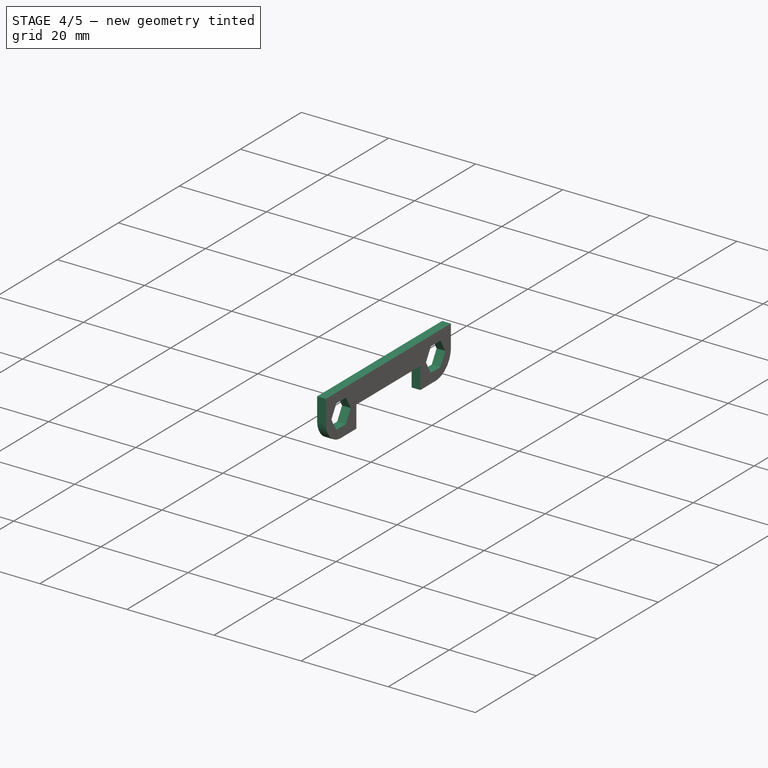
[diagram: stage 4 of 5 — iso view after this stage's code; geometry added in this stage tinted green]
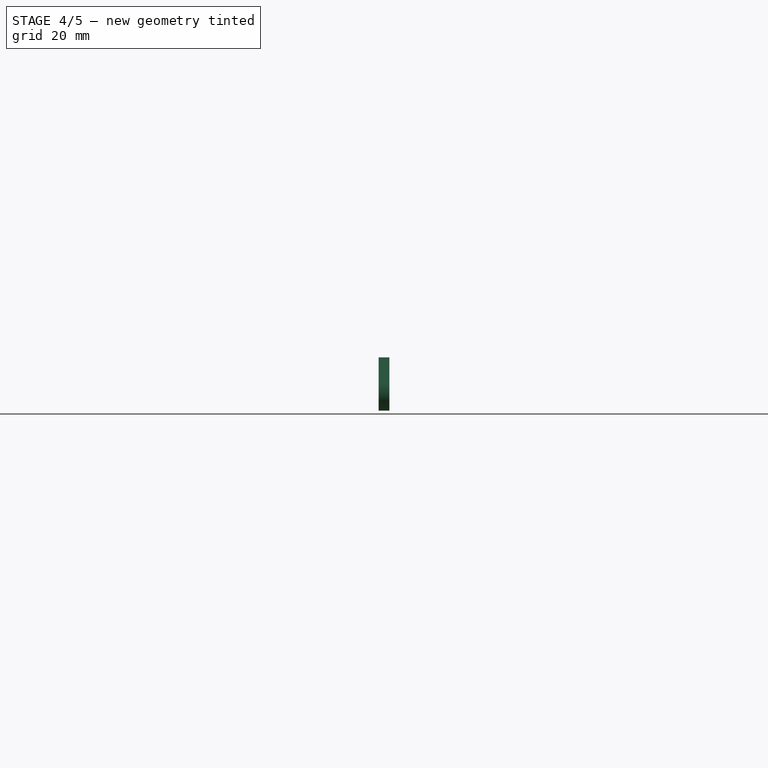
[diagram: stage 4 of 5 — front view after this stage's code; geometry added in this stage tinted green]
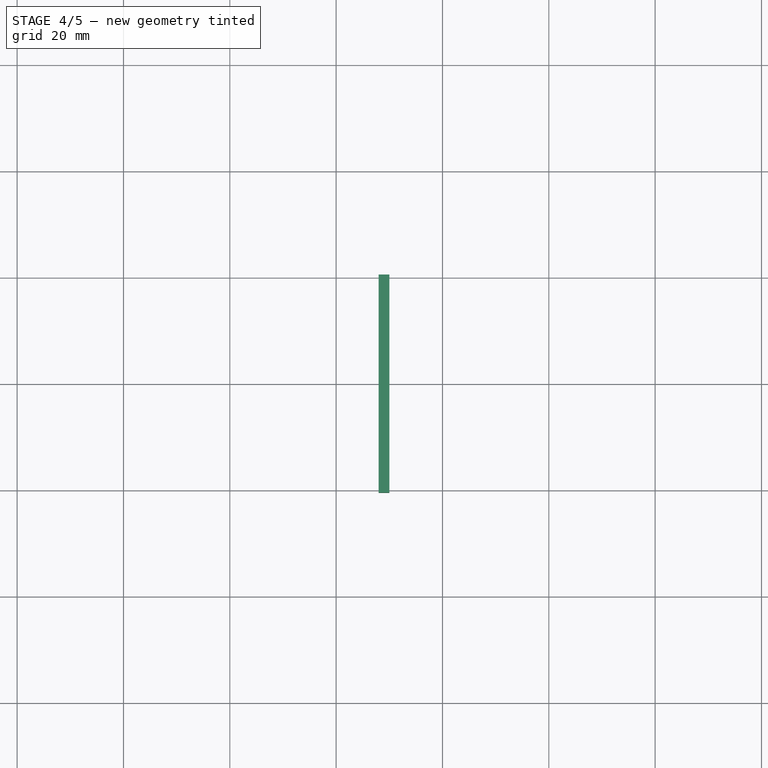
[diagram: stage 4 of 5 — top view after this stage's code; geometry added in this stage tinted green]
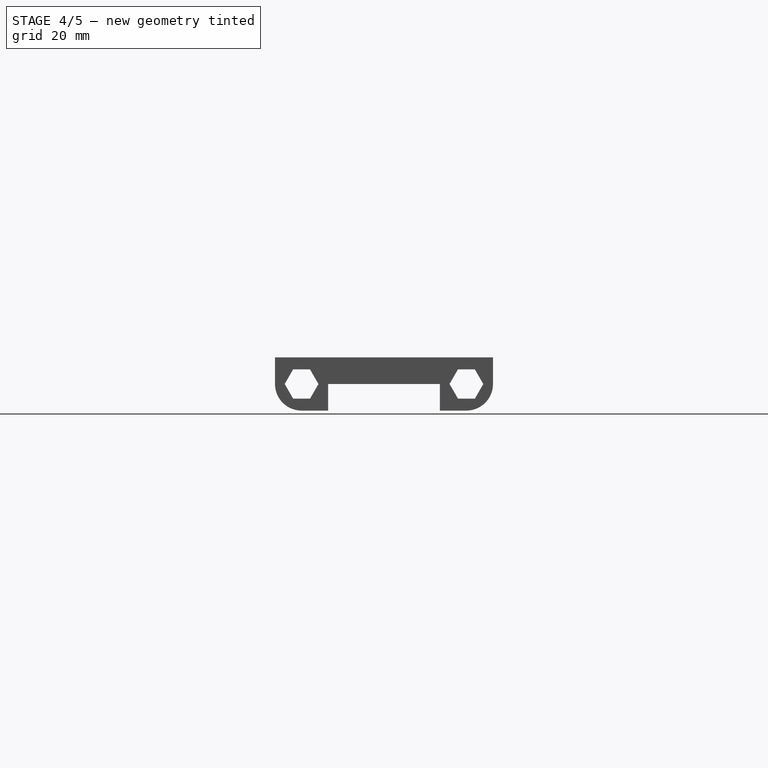
[diagram: stage 4 of 5 — right view after this stage's code; geometry added in this stage tinted green]
FEATURE [PartDesign::ShapeBinder] ShapeBinder003
  Placement = pos=(-23,0,5e-15) rot=(0,-1,0;1.5708rad)
  Support = -> [Pad004]
  TraceSupport = true
FEATURE [Sketcher::SketchObject] Sketch018
  ExternalGeometry = -> [ShapeBinder003]
  FullyConstrained = true
  MapMode = 5
  Placement = pos=(-65,8.4e-15,1.8e-15) rot=(-0.57735,0.57735,-0.57735;2.0944rad)
  Support = -> [Pad005]
  sketch-geometry (1):
    g0: Circle CenterX=-1.11e-14 CenterY=-1.11e-14 CenterZ=0 NormalX=0 NormalY=0 NormalZ=1 AngleXU=0 Radius=10
  constraints (2):
    c: Coincident(g0,g-3)
    c: Diameter(g0) = 20
FEATURE [Sketcher::SketchObject] Sketch019
  AttachmentOffset = pos=(0,0,-18) rot=(0,0,1;0rad)
  ExternalGeometry = -> [ShapeBinder003]
  FullyConstrained = true
  MapMode = 5
  Placement = pos=(-47,0,1.03e-14) rot=(0,-1,0;1.5708rad)
  Support = -> [ShapeBinder003]
  sketch-geometry (1):
    g0: Circle CenterX=0 CenterY=0 CenterZ=0 NormalX=0 NormalY=0 NormalZ=1 AngleXU=0 Radius=6
  constraints (2):
    c: Coincident(g0,g-1)
    c: Diameter(g0) = 12
FEATURE [PartDesign::AdditiveLoft] AdditiveLoft001
  BaseFeature = -> Pad005
  Closed = false
  Placement = pos=(-40,0,0) rot=(-0.57735,0.57735,0.57735;4.18879rad)
  Profile = -> Sketch018
  Ruled = false
  Sections = -> [Sketch019]
FEATURE [Sketcher::SketchObject] Sketch020
  ExternalGeometry = -> [ShapeBinder003]
  FullyConstrained = true
  MapMode = 5
  Placement = pos=(-65,0,1.43e-14) rot=(0,-1,0;1.5708rad)
  Support = -> [ShapeBinder003]
  sketch-geometry (4):
    g0: LineSegment StartX=0 StartY=0 StartZ=0 EndX=1.93347 EndY=1.95556 EndZ=0
    g1: LineSegment StartX=0 StartY=0 StartZ=0 EndX=-1.93347 EndY=1.95556 EndZ=0
    g2: ArcOfCircle CenterX=0 CenterY=0 CenterZ=0 NormalX=0 NormalY=0 NormalZ=1 AngleXU=0 Radius=2.75 StartAngle=2.35052 EndAngle=7.07426
    g3: LineSegment StartX=-1.93347 StartY=1.95556 StartZ=0 EndX=1.93347 EndY=1.95556 EndZ=0
  constraints (10):
    c: Coincident(g0,g-4)
    c: Coincident(g1,g0)
    c: PointOnObject(g-4,g1)
    c: PointOnObject(g-4,g0)
    c: Distance(g0) = 2.75
    c: Coincident(g2,g0)
    c: Coincident(g2,g1)
    c: Coincident(g2,g0)
    c: Coincident(g3,g2)
    c: Coincident(g3,g2)
FEATURE [PartDesign::Pocket] Pocket001
  BaseFeature = -> AdditiveLoft001
  Direction = (1,0,-2e-16)
  Length = 18
  Length2 = 5
  Placement = pos=(-40,0,0) rot=(-0.57735,0.57735,0.57735;4.18879rad)
  Profile = -> Sketch020
  ReferenceAxis = -> Sketch020 [N_Axis]
  Type = 0
FEATURE [PartDesign::Body] Body  label="Handle-Motor-Arm-1"
  Group = -> [ShapeBinder001,ShapeBinder002,Sketch017,Pad005,ShapeBinder003,Sketch018,Sketch019,AdditiveLoft001,Sketch020,Pocket001]
  Origin = -> Origin
  Tip = -> Pocket001
FEATURE [PartDesign::ShapeBinder] ShapeBinder004
  Placement = pos=(-5,1.1e-15,1.86e-14) rot=(0,0,1;0rad)
  Support = -> [Pocket001]
  TraceSupport = false
FEATURE [Sketcher::SketchObject] Sketch021
  ExternalGeometry = -> [ShapeBinder004]
  FullyConstrained = true
  MapMode = 5
  Placement = pos=(-70,3.38e-14,-1.47e-14) rot=(0.57735,-0.57735,-0.57735;2.0944rad)
  Support = -> [ShapeBinder004]
  sketch-geometry (29):
    g0: ArcOfCircle CenterX=-15.5 CenterY=-108 CenterZ=0 NormalX=0 NormalY=0 NormalZ=1 AngleXU=0 Radius=5 StartAngle=3.14159 EndAngle=4.71239
    g1: LineSegment StartX=-15.5 StartY=-113 StartZ=0 EndX=-10.5 EndY=-113 EndZ=0
    g2: LineSegment StartX=-15.5 StartY=-108 StartZ=0 EndX=-15.5 EndY=-113 EndZ=0
    g3: ArcOfCircle CenterX=15.5 CenterY=-108 CenterZ=0 NormalX=0 NormalY=0 NormalZ=1 AngleXU=0 Radius=5 StartAngle=4.71239 EndAngle=6.28319
    g4: LineSegment StartX=-20.5 StartY=-103 StartZ=0 EndX=20.5 EndY=-103 EndZ=0
    g5: LineSegment StartX=20.5 StartY=-103 StartZ=0 EndX=20.5 EndY=-108 EndZ=0
    g6: LineSegment StartX=15.5 StartY=-113 StartZ=0 EndX=10.5 EndY=-113 EndZ=0
    g7: LineSegment StartX=10.5 StartY=-113 StartZ=0 EndX=10.5 EndY=-108 EndZ=0
    g8: LineSegment StartX=10.5 StartY=-108 StartZ=0 EndX=-10.5 EndY=-108 EndZ=0
    g9: LineSegment StartX=-10.5 StartY=-108 StartZ=0 EndX=-10.5 EndY=-113 EndZ=0
    g10: LineSegment StartX=-13.9123 StartY=-105.25 StartZ=0 EndX=-17.0877 EndY=-105.25 EndZ=0
    g11: LineSegment StartX=-17.0877 StartY=-105.25 StartZ=0 EndX=-18.6754 EndY=-108 EndZ=0
    g12: LineSegment StartX=-18.6754 StartY=-108 StartZ=0 EndX=-17.0877 EndY=-110.75 EndZ=0
    g13: LineSegment StartX=-17.0877 StartY=-110.75 StartZ=0 EndX=-13.9123 EndY=-110.75 EndZ=0
    g14: LineSegment StartX=-13.9123 StartY=-110.75 StartZ=0 EndX=-12.3246 EndY=-108 EndZ=0
    g15: LineSegment StartX=-12.3246 StartY=-108 StartZ=0 EndX=-13.9123 EndY=-105.25 EndZ=0
    g16: Circle CenterX=-15.5 CenterY=-108 CenterZ=0 NormalX=0 NormalY=0 NormalZ=1 AngleXU=0 Radius=3.17543
    g17: LineSegment StartX=-17.0877 StartY=-105.25 StartZ=0 EndX=-17.0877 EndY=-110.75 EndZ=0
    g18: LineSegment StartX=17.0877 StartY=-105.25 StartZ=0 EndX=13.9123 EndY=-105.25 EndZ=0
    g19: LineSegment StartX=13.9123 StartY=-105.25 StartZ=0 EndX=12.3246 EndY=-108 EndZ=0
    g20: LineSegment StartX=12.3246 StartY=-108 StartZ=0 EndX=13.9123 EndY=-110.75 EndZ=0
    g21: LineSegment StartX=13.9123 StartY=-110.75 StartZ=0 EndX=17.0877 EndY=-110.75 EndZ=0
    g22: LineSegment StartX=17.0877 StartY=-110.75 StartZ=0 EndX=18.6754 EndY=-108 EndZ=0
    g23: LineSegment StartX=18.6754 StartY=-108 StartZ=0 EndX=17.0877 EndY=-105.25 EndZ=0
    g24: Circle CenterX=15.5 CenterY=-108 CenterZ=0 NormalX=0 NormalY=0 NormalZ=1 AngleXU=0 Radius=3.17543
    g25: LineSegment StartX=13.9123 StartY=-105.25 StartZ=0 EndX=13.9123 EndY=-110.75 EndZ=0
    g26: LineSegment StartX=-20.5 StartY=-103 StartZ=0 EndX=-20.5 EndY=-108 EndZ=0
    g27: LineSegment StartX=15.5 StartY=-108 StartZ=0 EndX=15.5 EndY=-103 EndZ=0
    g28: LineSegment StartX=15.5 StartY=-108 StartZ=0 EndX=15.5 EndY=-113 EndZ=0
  constraints (71):
    c: Coincident(g0,g-3)
    c: Coincident(g0,g-3)
    c: Equal(g-3,g0)
    c: Coincident(g1,g0)
    c: Horizontal(g1)
    c: Coincident(g2,g0)
    c: Coincident(g2,g0)
    c: Equal(g2,g1)
    c: Coincident(g3,g-4)
    c: Coincident(g-4,g3)
    c: Equal(g3,g-4)
    c: Horizontal(g4)
    c: Coincident(g5,g4)
    c: Coincident(g5,g3)
    c: Vertical(g5)
    c: Coincident(g6,g3)
    c: Horizontal(g6)
    c: Coincident(g7,g6)
    c: Vertical(g7)
    c: Coincident(g8,g7)
    c: Horizontal(g8)
    c: Coincident(g9,g8)
    c: Coincident(g9,g1)
    c: Vertical(g9)
    c: Equal(g6,g2)
    c: Equal(g7,g2)
    c: Coincident(g10,g11)
    c: Coincident(g11,g12)
    c: Coincident(g12,g13)
    c: Coincident(g13,g14)
    c: Coincident(g14,g15)
    c: Coincident(g15,g10)
    c: Equal(g10, g11-g15) x5
    c: PointOnObject(g10,g16)
    c: PointOnObject(g11,g16)
    c: PointOnObject(g12,g16)
    c: PointOnObject(g13,g16)
    c: PointOnObject(g14,g16)
    c: PointOnObject(g15,g16)
    c: Coincident(g16,g0)
    c: Horizontal(g13)
    c: Coincident(g17,g10)
    c: Coincident(g17,g12)
    c: Distance(g17) = 5.5
    c: Coincident(g18,g19)
    c: Coincident(g19,g20)
    c: Coincident(g20,g21)
    c: Coincident(g21,g22)
    c: Coincident(g22,g23)
    c: Coincident(g23,g18)
    c: Equal(g18, g19-g23) x5
    c: PointOnObject(g18,g24)
    c: PointOnObject(g19,g24)
    c: PointOnObject(g20,g24)
    c: PointOnObject(g21,g24)
    c: PointOnObject(g22,g24)
    c: PointOnObject(g23,g24)
    c: Coincident(g24,g3)
    c: Horizontal(g18)
    c: Coincident(g25,g18)
    c: Coincident(g25,g20)
    c: Equal(g17,g25)
    c: Coincident(g26,g4)
    c: Coincident(g26,g0)
    c: Vertical(g26)
    c: Coincident(g27,g3)
    c: PointOnObject(g27,g4)
    c: Vertical(g27)
    c: Coincident(g28,g3)
    c: Coincident(g28,g3)
    c: Equal(g28,g27)
FEATURE [PartDesign::Pad] Pad006
  Direction = (-1,6e-16,-4e-16)
  Length = 2
  Length2 = 10
  Placement = pos=(-5,1.1e-15,1.86e-14) rot=(0,0,1;0rad)
  Profile = -> Sketch021
  ReferenceAxis = -> Sketch021 [N_Axis]
  Type = 0
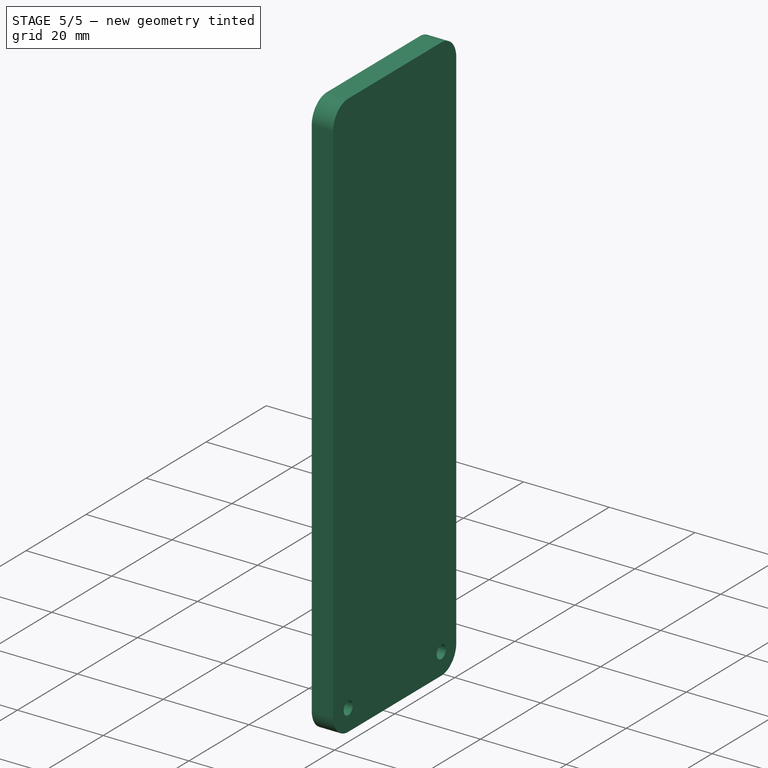
[diagram: stage 5 of 5 — iso view after this stage's code; geometry added in this stage tinted green]
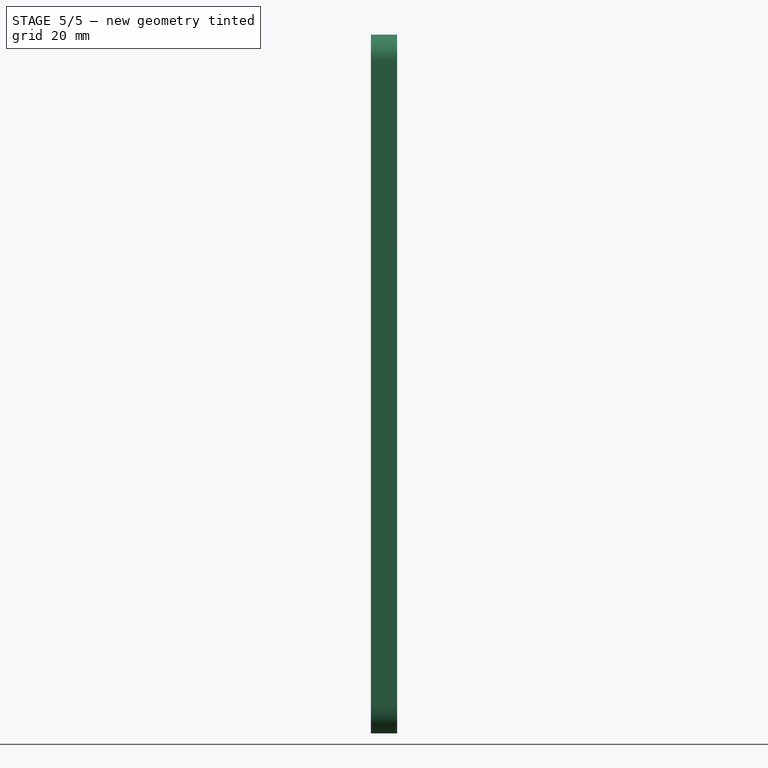
[diagram: stage 5 of 5 — front view after this stage's code; geometry added in this stage tinted green]
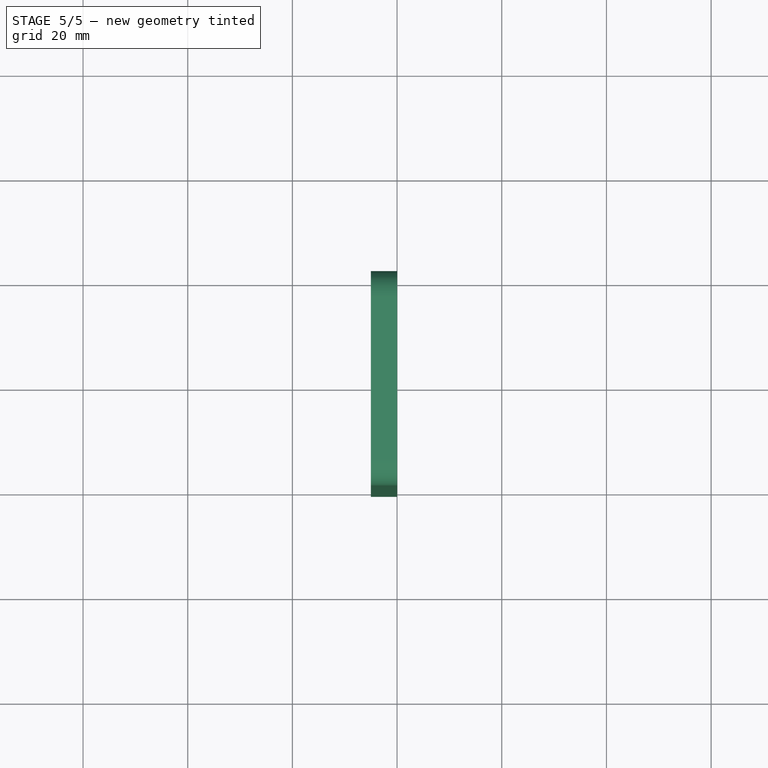
[diagram: stage 5 of 5 — top view after this stage's code; geometry added in this stage tinted green]
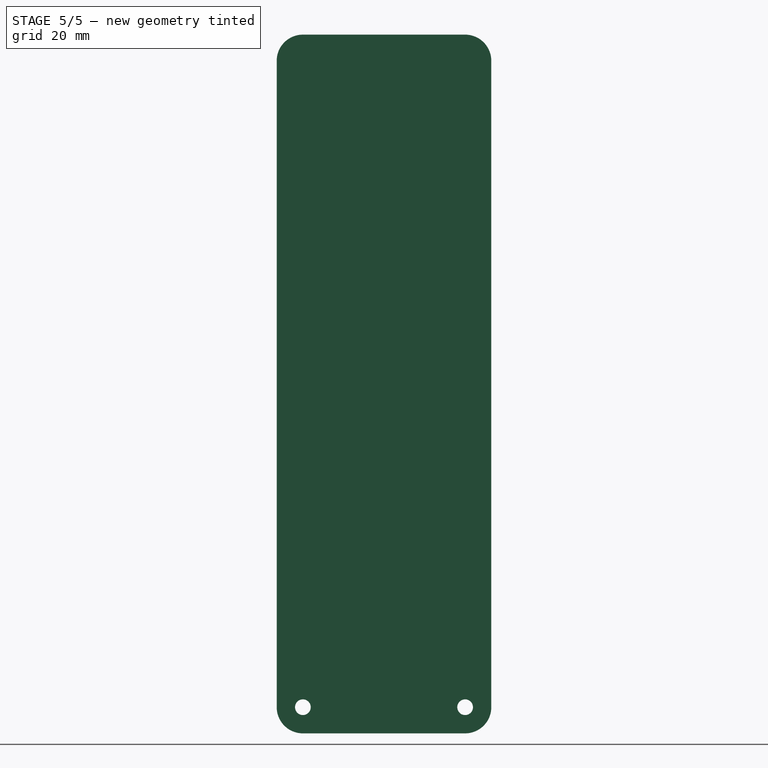
[diagram: stage 5 of 5 — right view after this stage's code; geometry added in this stage tinted green]
FEATURE [Sketcher::SketchObject] Sketch022
  ExternalGeometry = -> [Pad006]
  FullyConstrained = true
  MapMode = 5
  Placement = pos=(-70,3.38e-14,-1.47e-14) rot=(0.57735,-0.57735,-0.57735;2.0944rad)
  Support = -> [ShapeBinder004]
  sketch-geometry (4):
    g0: LineSegment StartX=-20.5 StartY=-103 StartZ=0 EndX=20.5 EndY=-103 EndZ=0
    g1: LineSegment StartX=20.5 StartY=-103 StartZ=0 EndX=20.5 EndY=-100 EndZ=0
    g2: LineSegment StartX=20.5 StartY=-100 StartZ=0 EndX=-20.5 EndY=-100 EndZ=0
    g3: LineSegment StartX=-20.5 StartY=-100 StartZ=0 EndX=-20.5 EndY=-103 EndZ=0
  constraints (10):
    c: Coincident(g0,g1)
    c: Coincident(g1,g2)
    c: Coincident(g2,g3)
    c: Coincident(g3,g0)
    c: Horizontal(g2)
    c: Vertical(g1)
    c: Vertical(g3)
    c: Coincident(g0,g-3)
    c: Coincident(g0,g-3)
    c: Distance(g1) = 3
FEATURE [PartDesign::Pad] Pad007
  BaseFeature = -> Pad006
  Direction = (-1,6e-16,-4e-16)
  Length = 150
  Length2 = 10
  Placement = pos=(-5,1.1e-15,1.86e-14) rot=(0,0,1;0rad)
  Profile = -> Sketch022
  ReferenceAxis = -> Sketch022 [N_Axis]
  Type = 0
FEATURE [Sketcher::SketchObject] Sketch023
  ExternalGeometry = -> [Pad007]
  FullyConstrained = false
  MapMode = 5
  Placement = pos=(-5,1.288e-13,-100) rot=(0,0,1;0rad)
  Support = -> [Pad007]
  sketch-geometry (34):
    g0: Circle CenterX=-140 CenterY=0 CenterZ=0 NormalX=0 NormalY=0 NormalZ=1 AngleXU=0 Radius=3.175
    g1: ArcOfCircle CenterX=-200 CenterY=0 CenterZ=0 NormalX=0 NormalY=0 NormalZ=1 AngleXU=0 Radius=3.175 StartAngle=1.5708 EndAngle=4.71239
    g2: ArcOfCircle CenterX=-155 CenterY=0 CenterZ=0 NormalX=0 NormalY=0 NormalZ=1 AngleXU=0 Radius=3.175 StartAngle=4.71239 EndAngle=7.85398
    g3: LineSegment StartX=-200 StartY=-3.175 StartZ=0 EndX=-155 EndY=-3.175 EndZ=0
    g4: LineSegment StartX=-155 StartY=3.175 StartZ=0 EndX=-200 EndY=3.175 EndZ=0
    g5: ArcOfCircle CenterX=-125 CenterY=0 CenterZ=0 NormalX=0 NormalY=0 NormalZ=1 AngleXU=0 Radius=3.175 StartAngle=1.5708 EndAngle=4.71239
    g6: ArcOfCircle CenterX=-80 CenterY=0 CenterZ=0 NormalX=0 NormalY=0 NormalZ=1 AngleXU=0 Radius=3.175 StartAngle=4.71239 EndAngle=7.85398
    g7: LineSegment StartX=-125 StartY=-3.175 StartZ=0 EndX=-80 EndY=-3.175 EndZ=0
    g8: LineSegment StartX=-80 StartY=3.175 StartZ=0 EndX=-125 EndY=3.175 EndZ=0
    g9: Circle CenterX=-200.807 CenterY=13.1873 CenterZ=0 NormalX=0 NormalY=0 NormalZ=1 AngleXU=0 Radius=3.175
    g10: Circle CenterX=-182.106 CenterY=13.1873 CenterZ=0 NormalX=0 NormalY=0 NormalZ=1 AngleXU=0 Radius=3.175
    g11: Circle CenterX=-164.084 CenterY=13.1873 CenterZ=0 NormalX=0 NormalY=0 NormalZ=1 AngleXU=0 Radius=3.175
    g12: Circle CenterX=-125 CenterY=13.1873 CenterZ=0 NormalX=0 NormalY=0 NormalZ=1 AngleXU=0 Radius=3.175
    g13: Circle CenterX=-101.145 CenterY=13.1873 CenterZ=0 NormalX=0 NormalY=0 NormalZ=1 AngleXU=0 Radius=3.175
    g14: Circle CenterX=-80 CenterY=13.1873 CenterZ=0 NormalX=0 NormalY=0 NormalZ=1 AngleXU=0 Radius=3.175
    g15: Circle CenterX=-80 CenterY=-12.0721 CenterZ=0 NormalX=0 NormalY=0 NormalZ=1 AngleXU=0 Radius=3.175
    g16: Circle CenterX=-101.145 CenterY=-12.0721 CenterZ=0 NormalX=0 NormalY=0 NormalZ=1 AngleXU=0 Radius=3.175
    g17: Circle CenterX=-125 CenterY=-12.0721 CenterZ=0 NormalX=0 NormalY=0 NormalZ=1 AngleXU=0 Radius=3.175
    g18: Circle CenterX=-166.658 CenterY=-12.0721 CenterZ=0 NormalX=0 NormalY=0 NormalZ=1 AngleXU=0 Radius=3.175
    g19: Circle CenterX=-184.275 CenterY=-12.0721 CenterZ=0 NormalX=0 NormalY=0 NormalZ=1 AngleXU=0 Radius=3.175
    g20: Circle CenterX=-203.175 CenterY=-12.0721 CenterZ=0 NormalX=0 NormalY=0 NormalZ=1 AngleXU=0 Radius=3.175
    g21: LineSegment StartX=-212.647 StartY=-12.0721 StartZ=0 EndX=-65 EndY=-12.0721 EndZ=0
    g22: LineSegment StartX=-65 StartY=20.5 StartZ=0 EndX=-65 EndY=-20.5 EndZ=0
    g23: LineSegment StartX=-215 StartY=13.1873 StartZ=0 EndX=-67.0932 EndY=13.1873 EndZ=0
    g24: LineSegment StartX=-200 StartY=0 StartZ=0 EndX=-215 EndY=0 EndZ=0
    g25: LineSegment StartX=-155 StartY=0 StartZ=0 EndX=-140 EndY=0 EndZ=0
    g26: LineSegment StartX=-140 StartY=0 StartZ=0 EndX=-125 EndY=0 EndZ=0
    g27: LineSegment StartX=-80 StartY=0 StartZ=0 EndX=-65 EndY=0 EndZ=0
    g28: LineSegment StartX=-200 StartY=20.5 StartZ=0 EndX=-200 EndY=-20.5 EndZ=0
    g29: LineSegment StartX=-186.536 StartY=20.5 StartZ=0 EndX=-186.536 EndY=-20.5 EndZ=0
    g30: LineSegment StartX=-155 StartY=20.5 StartZ=0 EndX=-155 EndY=-20.5 EndZ=0
    g31: LineSegment StartX=-125 StartY=20.5 StartZ=0 EndX=-125 EndY=-20.5 EndZ=0
    g32: LineSegment StartX=-101.145 StartY=20.5 StartZ=0 EndX=-101.145 EndY=-20.5 EndZ=0
    g33: LineSegment StartX=-80 StartY=20.5 StartZ=0 EndX=-80 EndY=-20.5 EndZ=0
  constraints (90):
    c: PointOnObject(g0,g-1)
    c: Tangent(g1,g3) = -1.5708
    c: Tangent(g3,g2) = -1.5708
    c: Tangent(g2,g4) = -1.5708
    c: Tangent(g4,g1) = -1.5708
    c: Equal(g1,g2)
    c: PointOnObject(g1,g-1)
    c: PointOnObject(g2,g-1)
    c: Tangent(g5,g7) = -1.5708
    c: Tangent(g7,g6) = -1.5708
    c: Tangent(g6,g8) = -1.5708
    c: Tangent(g8,g5) = -1.5708
    c: Equal(g5,g6)
    c: PointOnObject(g5,g-1)
    c: PointOnObject(g6,g-1)
    c: Equal(g0,g5)
    c: Equal(g0,g2)
    c: Diameter(g0) = 6.35
    c: Horizontal(g21)
    c: Coincident(g22,g-4)
    c: Coincident(g22,g-5)
    c: PointOnObject(g21,g22)
    c: PointOnObject(g23,g-6)
    c: Horizontal(g23)
    c: PointOnObject(g11,g23)
    c: PointOnObject(g10,g23)
    c: PointOnObject(g9,g23)
    c: PointOnObject(g20,g21)
    c: PointOnObject(g19,g21)
    c: PointOnObject(g18,g21)
    c: PointOnObject(g17,g21)
    c: PointOnObject(g16,g21)
    c: PointOnObject(g15,g21)
    c: PointOnObject(g12,g23)
    c: PointOnObject(g13,g23)
    c: PointOnObject(g14,g23)
    c: Equal(g0,g11)
    c: Equal(g0,g10)
    c: Equal(g0,g9)
    c: Equal(g0,g20)
    c: Equal(g0,g19)
    c: Equal(g0,g18)
    c: Equal(g0,g17)
    c: Equal(g0,g16)
    c: Equal(g0,g15)
    c: Equal(g0,g14)
    c: Equal(g0,g13)
    c: Equal(g0,g12)
    c: Coincident(g24,g1)
    c: PointOnObject(g24,g-6)
    c: Horizontal(g24)
    c: Coincident(g25,g2)
    c: Coincident(g25,g0)
    c: Coincident(g26,g0)
    c: Coincident(g26,g5)
    c: Coincident(g27,g6)
    c: Equal(g27,g26)
    c: Equal(g25,g26)
    c: Equal(g25,g24)
    c: PointOnObject(g27,g22)
    c: Symmetric(g24,g27,g0)
    c: Distance(g26) = 15
    c: PointOnObject(g28,g-4)
    c: PointOnObject(g28,g-5)
    c: Vertical(g28)
    c: PointOnObject(g29,g-4)
    c: PointOnObject(g29,g-5)
    c: Vertical(g29)
    c: PointOnObject(g30,g-4)
    c: PointOnObject(g30,g-5)
    c: PointOnObject(g31,g-4)
    c: PointOnObject(g31,g-5)
    c: Vertical(g31)
    c: PointOnObject(g32,g-4)
    c: PointOnObject(g32,g-5)
    c: PointOnObject(g33,g-4)
    c: PointOnObject(g33,g-5)
    c: Vertical(g33)
    c: Vertical(g32)
    c: Vertical(g30)
    c: PointOnObject(g1,g28)
    c: PointOnObject(g2,g30)
    c: PointOnObject(g5,g31)
    c: PointOnObject(g6,g33)
    c: PointOnObject(g15,g33)
    c: PointOnObject(g16,g32)
    c: PointOnObject(g17,g31)
    c: PointOnObject(g12,g31)
    c: PointOnObject(g13,g32)
    c: PointOnObject(g14,g33)
FEATURE [PartDesign::Pocket] Pocket002
  BaseFeature = -> Pad007
  Direction = (1.1e-15,1.3e-15,-1)
  Length = 5
  Length2 = 5
  Placement = pos=(-5,1.1e-15,1.86e-14) rot=(0,0,1;0rad)
  Profile = -> Sketch023
  ReferenceAxis = -> Sketch023 [N_Axis]
  Type = 0
FEATURE [Sketcher::SketchObject] Sketch024
  ExternalGeometry = -> [Pocket002]
  FullyConstrained = true
  MapMode = 5
  Placement = pos=(-220,2.218e-13,-3.036e-13) rot=(-0.57735,0.57735,0.57735;4.18879rad)
  Support = -> [Pocket002]
  sketch-geometry (24):
    g0: LineSegment StartX=-20.5 StartY=-103 StartZ=0 EndX=20.5 EndY=-103 EndZ=0
    g1: LineSegment StartX=20.5 StartY=-103 StartZ=0 EndX=20.5 EndY=-108 EndZ=0
    g2: LineSegment StartX=15.5 StartY=-113 StartZ=0 EndX=10.5 EndY=-113 EndZ=0
    g3: LineSegment StartX=10.5 StartY=-113 StartZ=0 EndX=10.5 EndY=-108 EndZ=0
    g4: LineSegment StartX=10.5 StartY=-108 StartZ=0 EndX=-10.5 EndY=-108 EndZ=0
    g5: LineSegment StartX=-10.5 StartY=-108 StartZ=0 EndX=-10.5 EndY=-113 EndZ=0
    g6: LineSegment StartX=-10.5 StartY=-113 StartZ=0 EndX=-15.5 EndY=-113 EndZ=0
    g7: LineSegment StartX=-20.5 StartY=-108 StartZ=0 EndX=-20.5 EndY=-103 EndZ=0
    g8: ArcOfCircle CenterX=-15.5 CenterY=-108 CenterZ=0 NormalX=0 NormalY=0 NormalZ=1 AngleXU=0 Radius=5 StartAngle=3.14159 EndAngle=4.71239
    g9: ArcOfCircle CenterX=15.5 CenterY=-108 CenterZ=0 NormalX=0 NormalY=0 NormalZ=1 AngleXU=0 Radius=5 StartAngle=4.71239 EndAngle=6.28319
    g10: LineSegment StartX=-13.9123 StartY=-105.25 StartZ=0 EndX=-17.0877 EndY=-105.25 EndZ=0
    g11: LineSegment StartX=-17.0877 StartY=-105.25 StartZ=0 EndX=-18.6754 EndY=-108 EndZ=0
    g12: LineSegment StartX=-18.6754 StartY=-108 StartZ=0 EndX=-17.0877 EndY=-110.75 EndZ=0
    g13: LineSegment StartX=-17.0877 StartY=-110.75 StartZ=0 EndX=-13.9123 EndY=-110.75 EndZ=0
    g14: LineSegment StartX=-13.9123 StartY=-110.75 StartZ=0 EndX=-12.3246 EndY=-108 EndZ=0
    g15: LineSegment StartX=-12.3246 StartY=-108 StartZ=0 EndX=-13.9123 EndY=-105.25 EndZ=0
    g16: Circle CenterX=-15.5 CenterY=-108 CenterZ=0 NormalX=0 NormalY=0 NormalZ=1 AngleXU=0 Radius=3.17543
    g17: LineSegment StartX=18.6754 StartY=-108 StartZ=0 EndX=17.0877 EndY=-105.25 EndZ=0
    g18: LineSegment StartX=17.0877 StartY=-105.25 StartZ=0 EndX=13.9123 EndY=-105.25 EndZ=0
    g19: LineSegment StartX=13.9123 StartY=-105.25 StartZ=0 EndX=12.3246 EndY=-108 EndZ=0
    g20: LineSegment StartX=12.3246 StartY=-108 StartZ=0 EndX=13.9123 EndY=-110.75 EndZ=0
    g21: LineSegment StartX=13.9123 StartY=-110.75 StartZ=0 EndX=17.0877 EndY=-110.75 EndZ=0
    g22: LineSegment StartX=17.0877 StartY=-110.75 StartZ=0 EndX=18.6754 EndY=-108 EndZ=0
    g23: Circle CenterX=15.5 CenterY=-108 CenterZ=0 NormalX=0 NormalY=0 NormalZ=1 AngleXU=0 Radius=3.17543
  constraints (54):
    c: Coincident(g0,g-8)
    c: Coincident(g0,g-8)
    c: Coincident(g1,g0)
    c: Coincident(g1,g-7)
    c: Coincident(g2,g-6)
    c: Coincident(g2,g-6)
    c: Coincident(g3,g2)
    c: Coincident(g3,g-3)
    c: Coincident(g4,g3)
    c: Coincident(g4,g-3)
    c: Coincident(g5,g4)
    c: Coincident(g5,g-4)
    c: Coincident(g6,g5)
    c: Coincident(g6,g-4)
    c: Coincident(g7,g-5)
    c: Coincident(g7,g0)
    c: Coincident(g8,g6)
    c: Coincident(g8,g7)
    c: Equal(g-9,g8)
    c: Coincident(g9,g1)
    c: Coincident(g9,g2)
    c: Equal(g-10,g9)
    c: Coincident(g10,g11)
    c: Coincident(g11,g12)
    c: Coincident(g12,g13)
    c: Coincident(g13,g14)
    c: Coincident(g14,g15)
    c: Coincident(g15,g10)
    c: Equal(g10, g11-g15) x5
    c: PointOnObject(g10,g16)
    c: PointOnObject(g11,g16)
    c: PointOnObject(g12,g16)
    c: PointOnObject(g13,g16)
    c: PointOnObject(g14,g16)
    c: PointOnObject(g15,g16)
    c: Equal(g10,g-11)
    c: Horizontal(g10)
    c: Coincident(g16,g8)
    c: Coincident(g17,g18)
    c: Coincident(g18,g19)
    c: Coincident(g19,g20)
    c: Coincident(g20,g21)
    c: Coincident(g21,g22)
    c: Coincident(g22,g17)
    c: Equal(g17, g18-g22) x5
    c: PointOnObject(g17,g23)
    c: PointOnObject(g18,g23)
    c: PointOnObject(g19,g23)
    c: PointOnObject(g20,g23)
    c: PointOnObject(g21,g23)
    c: PointOnObject(g22,g23)
    c: Horizontal(g18)
    c: Equal(g-14,g18)
    c: Coincident(g23,g9)
FEATURE [PartDesign::Pad] Pad008
  BaseFeature = -> Pocket002
  Direction = (-1,1e-15,-1.4e-15)
  Length = 2
  Length2 = 10
  Placement = pos=(-5,1.1e-15,1.86e-14) rot=(0,0,1;0rad)
  Profile = -> Sketch024
  ReferenceAxis = -> Sketch024 [N_Axis]
  Reversed = true
  Type = 0
FEATURE [PartDesign::Body] Body004  label="Bridge"
  Group = -> [ShapeBinder004,Sketch021,Pad006,Sketch022,Pad007,Sketch023,Pocket002,Sketch024,Pad008]
  Origin = -> Origin004
  Tip = -> Pad008
FEATURE [PartDesign::ShapeBinder] ShapeBinder005
  Placement = pos=(-5,1.1e-15,1.86e-14) rot=(0,0,1;0rad)
  Support = -> [Pad008]
  TraceSupport = false
FEATURE [PartDesign::ShapeBinder] ShapeBinder006
  Placement = pos=(-5,1.1e-15,1.86e-14) rot=(0,0,1;0rad)
  Support = -> [Pocket001]
  TraceSupport = false
FEATURE [Sketcher::SketchObject] Sketch025
  ExternalGeometry = -> [ShapeBinder006,ShapeBinder005]
  FullyConstrained = true
  MapMode = 5
  Placement = pos=(-220,2.824e-13,-4.697e-13) rot=(-0.57735,0.57735,0.57735;4.18879rad)
  Support = -> [ShapeBinder005]
  sketch-geometry (10):
    g0: LineSegment StartX=-20.5 StartY=15.5 StartZ=0 EndX=-20.5 EndY=-108 EndZ=0
    g1: LineSegment StartX=20.5 StartY=-108 StartZ=0 EndX=20.5 EndY=15.5 EndZ=0
    g2: LineSegment StartX=15.5 StartY=20.5 StartZ=0 EndX=-15.5 EndY=20.5 EndZ=0
    g3: LineSegment StartX=-15.5 StartY=-113 StartZ=0 EndX=15.5 EndY=-113 EndZ=0
    g4: ArcOfCircle CenterX=-15.5 CenterY=-108 CenterZ=0 NormalX=0 NormalY=0 NormalZ=1 AngleXU=0 Radius=5 StartAngle=3.14159 EndAngle=4.71239
    g5: ArcOfCircle CenterX=15.5 CenterY=-108 CenterZ=0 NormalX=0 NormalY=0 NormalZ=1 AngleXU=0 Radius=5 StartAngle=4.71239 EndAngle=6.28319
    g6: Circle CenterX=15.5 CenterY=-108 CenterZ=0 NormalX=0 NormalY=0 NormalZ=1 AngleXU=0 Radius=1.5
    g7: Circle CenterX=-15.5 CenterY=-108 CenterZ=0 NormalX=0 NormalY=0 NormalZ=1 AngleXU=0 Radius=1.5
    g8: ArcOfCircle CenterX=15.5 CenterY=15.5 CenterZ=0 NormalX=0 NormalY=0 NormalZ=1 AngleXU=0 Radius=5 StartAngle=0 EndAngle=1.5708
    g9: ArcOfCircle CenterX=-15.5 CenterY=15.5 CenterZ=0 NormalX=0 NormalY=0 NormalZ=1 AngleXU=0 Radius=5 StartAngle=1.5708 EndAngle=3.14159
  constraints (24):
    c: Coincident(g0,g-11)
    c: Coincident(g0,g-7)
    c: Coincident(g1,g-8)
    c: Coincident(g1,g-9)
    c: Coincident(g2,g-10)
    c: Coincident(g2,g-11)
    c: Coincident(g3,g-7)
    c: Coincident(g3,g-8)
    c: Coincident(g4,g3)
    c: Coincident(g4,g0)
    c: Equal(g-7,g4)
    c: Coincident(g5,g1)
    c: Coincident(g5,g3)
    c: Equal(g-8,g5)
    c: Coincident(g6,g5)
    c: Equal(g6,g-5)
    c: Coincident(g7,g4)
    c: Equal(g7,g6)
    c: Coincident(g8,g1)
    c: Coincident(g8,g2)
    c: Equal(g8,g-9)
    c: Coincident(g9,g2)
    c: Coincident(g9,g0)
    c: Equal(g-11,g9)
FEATURE [PartDesign::Pad] Pad009
  Direction = (-1,1.2e-15,-2.1e-15)
  Length = 5
  Length2 = 10
  Placement = pos=(-5,1.1e-15,1.86e-14) rot=(0,0,1;0rad)
  Profile = -> Sketch025
  ReferenceAxis = -> Sketch025 [N_Axis]
  Type = 0
FEATURE [PartDesign::Body] Body005  label="Handle-Arm-2"
  Group = -> [ShapeBinder005,ShapeBinder006,Sketch025,Pad009]
  Origin = -> Origin005
  Tip = -> Pad009
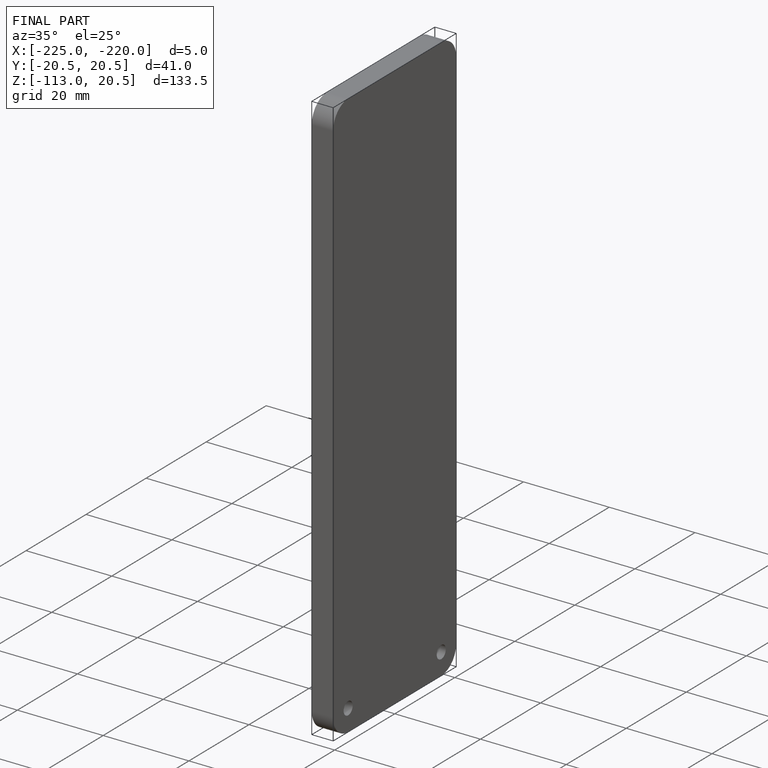
[diagram: finished part — iso view with bounding-box wireframe]
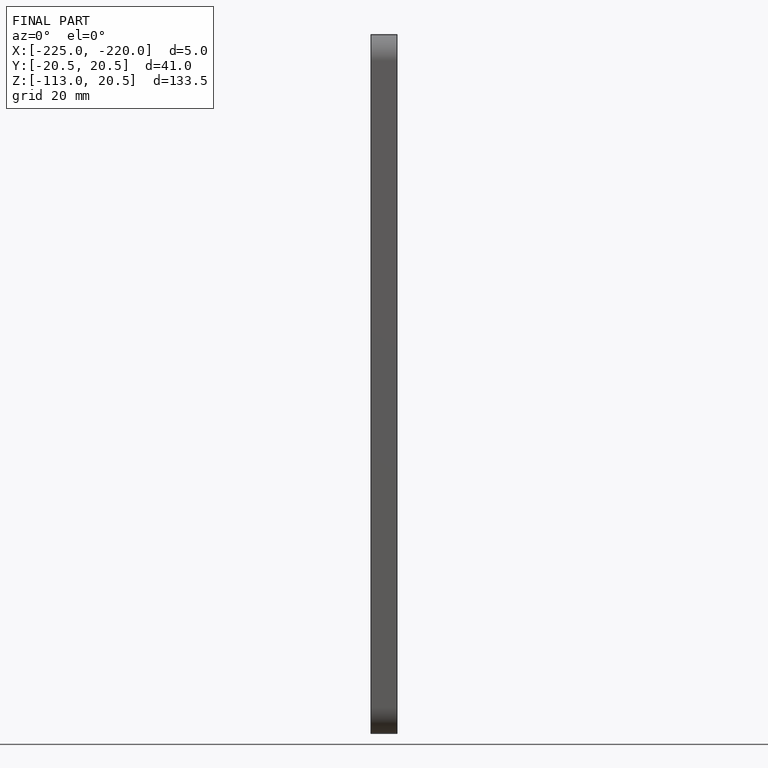
[diagram: finished part — front view with bounding-box wireframe]
